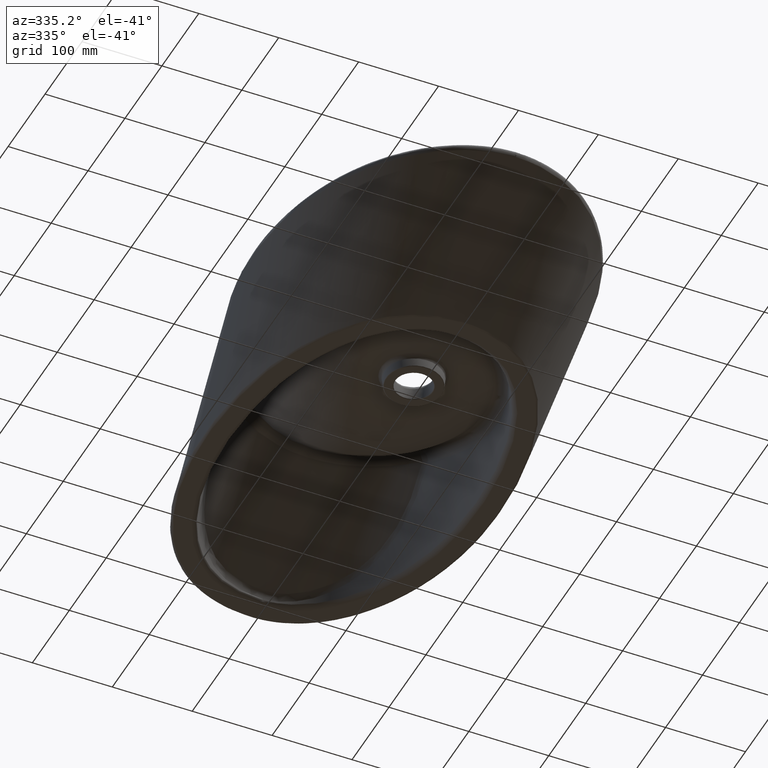
[diagram: clean part render]
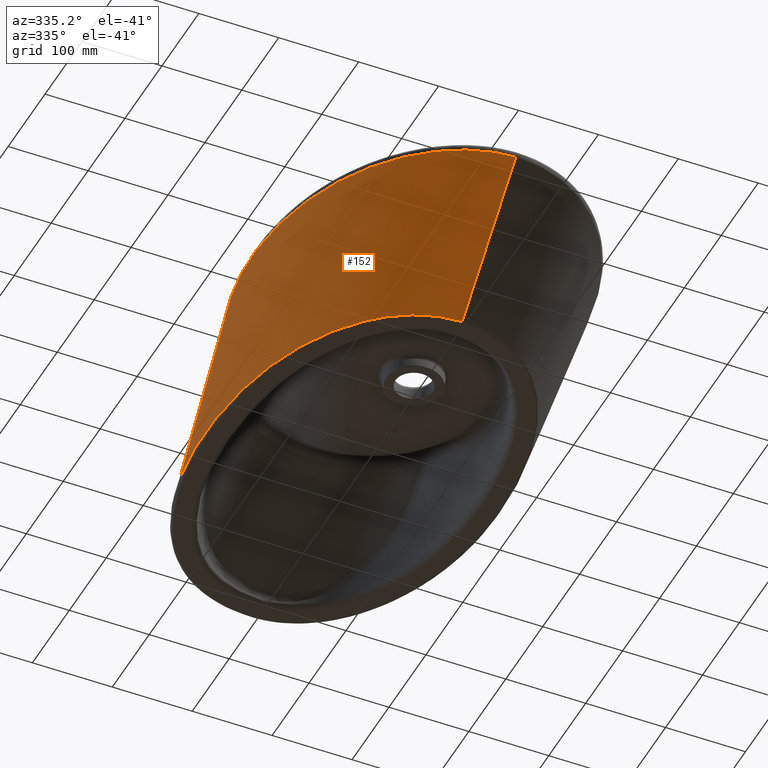
[diagram: same view with one face highlighted and labeled with its STEP entity id]
A machine part, auxiliary view. The second image highlights one B-rep face of the part: STEP entity #152.
In plain terms, the highlighted face is a freeform B-spline surface patch.
Its self-contained STEP definition (entity closure, byte-faithful):
#113=B_SPLINE_SURFACE_WITH_KNOTS('',3,3,((#1786,#1787,#1788,#1789,#1790,
#1791,#1792,#1793,#1794,#1795,#1796,#1797,#1798,#1799,#1800,#1801,#1802,
#1803,#1804,#1805,#1806,#1807,#1808,#1809),(#1810,#1811,#1812,#1813,#1814,
#1815,#1816,#1817,#1818,#1819,#1820,#1821,#1822,#1823,#1824,#1825,#1826,
#1827,#1828,#1829,#1830,#1831,#1832,#1833),(#1834,#1835,#1836,#1837,#1838,
#1839,#1840,#1841,#1842,#1843,#1844,#1845,#1846,#1847,#1848,#1849,#1850,
#1851,#1852,#1853,#1854,#1855,#1856,#1857),(#1858,#1859,#1860,#1861,#1862,
#1863,#1864,#1865,#1866,#1867,#1868,#1869,#1870,#1871,#1872,#1873,#1874,
#1875,#1876,#1877,#1878,#1879,#1880,#1881),(#1882,#1883,#1884,#1885,#1886,
#1887,#1888,#1889,#1890,#1891,#1892,#1893,#1894,#1895,#1896,#1897,#1898,
#1899,#1900,#1901,#1902,#1903,#1904,#1905),(#1906,#1907,#1908,#1909,#1910,
#1911,#1912,#1913,#1914,#1915,#1916,#1917,#1918,#1919,#1920,#1921,#1922,
#1923,#1924,#1925,#1926,#1927,#1928,#1929),(#1930,#1931,#1932,#1933,#1934,
#1935,#1936,#1937,#1938,#1939,#1940,#1941,#1942,#1943,#1944,#1945,#1946,
#1947,#1948,#1949,#1950,#1951,#1952,#1953),(#1954,#1955,#1956,#1957,#1958,
#1959,#1960,#1961,#1962,#1963,#1964,#1965,#1966,#1967,#1968,#1969,#1970,
#1971,#1972,#1973,#1974,#1975,#1976,#1977),(#1978,#1979,#1980,#1981,#1982,
#1983,#1984,#1985,#1986,#1987,#1988,#1989,#1990,#1991,#1992,#1993,#1994,
#1995,#1996,#1997,#1998,#1999,#2000,#2001),(#2002,#2003,#2004,#2005,#2006,
#2007,#2008,#2009,#2010,#2011,#2012,#2013,#2014,#2015,#2016,#2017,#2018,
#2019,#2020,#2021,#2022,#2023,#2024,#2025),(#2026,#2027,#2028,#2029,#2030,
#2031,#2032,#2033,#2034,#2035,#2036,#2037,#2038,#2039,#2040,#2041,#2042,
#2043,#2044,#2045,#2046,#2047,#2048,#2049),(#2050,#2051,#2052,#2053,#2054,
#2055,#2056,#2057,#2058,#2059,#2060,#2061,#2062,#2063,#2064,#2065,#2066,
#2067,#2068,#2069,#2070,#2071,#2072,#2073),(#2074,#2075,#2076,#2077,#2078,
#2079,#2080,#2081,#2082,#2083,#2084,#2085,#2086,#2087,#2088,#2089,#2090,
#2091,#2092,#2093,#2094,#2095,#2096,#2097),(#2098,#2099,#2100,#2101,#2102,
#2103,#2104,#2105,#2106,#2107,#2108,#2109,#2110,#2111,#2112,#2113,#2114,
#2115,#2116,#2117,#2118,#2119,#2120,#2121),(#2122,#2123,#2124,#2125,#2126,
#2127,#2128,#2129,#2130,#2131,#2132,#2133,#2134,#2135,#2136,#2137,#2138,
#2139,#2140,#2141,#2142,#2143,#2144,#2145),(#2146,#2147,#2148,#2149,#2150,
#2151,#2152,#2153,#2154,#2155,#2156,#2157,#2158,#2159,#2160,#2161,#2162,
#2163,#2164,#2165,#2166,#2167,#2168,#2169),(#2170,#2171,#2172,#2173,#2174,
#2175,#2176,#2177,#2178,#2179,#2180,#2181,#2182,#2183,#2184,#2185,#2186,
#2187,#2188,#2189,#2190,#2191,#2192,#2193),(#2194,#2195,#2196,#2197,#2198,
#2199,#2200,#2201,#2202,#2203,#2204,#2205,#2206,#2207,#2208,#2209,#2210,
#2211,#2212,#2213,#2214,#2215,#2216,#2217),(#2218,#2219,#2220,#2221,#2222,
#2223,#2224,#2225,#2226,#2227,#2228,#2229,#2230,#2231,#2232,#2233,#2234,
#2235,#2236,#2237,#2238,#2239,#2240,#2241),(#2242,#2243,#2244,#2245,#2246,
#2247,#2248,#2249,#2250,#2251,#2252,#2253,#2254,#2255,#2256,#2257,#2258,
#2259,#2260,#2261,#2262,#2263,#2264,#2265),(#2266,#2267,#2268,#2269,#2270,
#2271,#2272,#2273,#2274,#2275,#2276,#2277,#2278,#2279,#2280,#2281,#2282,
#2283,#2284,#2285,#2286,#2287,#2288,#2289),(#2290,#2291,#2292,#2293,#2294,
#2295,#2296,#2297,#2298,#2299,#2300,#2301,#2302,#2303,#2304,#2305,#2306,
#2307,#2308,#2309,#2310,#2311,#2312,#2313),(#2314,#2315,#2316,#2317,#2318,
#2319,#2320,#2321,#2322,#2323,#2324,#2325,#2326,#2327,#2328,#2329,#2330,
#2331,#2332,#2333,#2334,#2335,#2336,#2337),(#2338,#2339,#2340,#2341,#2342,
#2343,#2344,#2345,#2346,#2347,#2348,#2349,#2350,#2351,#2352,#2353,#2354,
#2355,#2356,#2357,#2358,#2359,#2360,#2361),(#2362,#2363,#2364,#2365,#2366,
#2367,#2368,#2369,#2370,#2371,#2372,#2373,#2374,#2375,#2376,#2377,#2378,
#2379,#2380,#2381,#2382,#2383,#2384,#2385),(#2386,#2387,#2388,#2389,#2390,
#2391,#2392,#2393,#2394,#2395,#2396,#2397,#2398,#2399,#2400,#2401,#2402,
#2403,#2404,#2405,#2406,#2407,#2408,#2409),(#2410,#2411,#2412,#2413,#2414,
#2415,#2416,#2417,#2418,#2419,#2420,#2421,#2422,#2423,#2424,#2425,#2426,
#2427,#2428,#2429,#2430,#2431,#2432,#2433),(#2434,#2435,#2436,#2437,#2438,
#2439,#2440,#2441,#2442,#2443,#2444,#2445,#2446,#2447,#2448,#2449,#2450,
#2451,#2452,#2453,#2454,#2455,#2456,#2457),(#2458,#2459,#2460,#2461,#2462,
#2463,#2464,#2465,#2466,#2467,#2468,#2469,#2470,#2471,#2472,#2473,#2474,
#2475,#2476,#2477,#2478,#2479,#2480,#2481),(#2482,#2483,#2484,#2485,#2486,
#2487,#2488,#2489,#2490,#2491,#2492,#2493,#2494,#2495,#2496,#2497,#2498,
#2499,#2500,#2501,#2502,#2503,#2504,#2505),(#2506,#2507,#2508,#2509,#2510,
#2511,#2512,#2513,#2514,#2515,#2516,#2517,#2518,#2519,#2520,#2521,#2522,
#2523,#2524,#2525,#2526,#2527,#2528,#2529),(#2530,#2531,#2532,#2533,#2534,
#2535,#2536,#2537,#2538,#2539,#2540,#2541,#2542,#2543,#2544,#2545,#2546,
#2547,#2548,#2549,#2550,#2551,#2552,#2553),(#2554,#2555,#2556,#2557,#2558,
#2559,#2560,#2561,#2562,#2563,#2564,#2565,#2566,#2567,#2568,#2569,#2570,
#2571,#2572,#2573,#2574,#2575,#2576,#2577),(#2578,#2579,#2580,#2581,#2582,
#2583,#2584,#2585,#2586,#2587,#2588,#2589,#2590,#2591,#2592,#2593,#2594,
#2595,#2596,#2597,#2598,#2599,#2600,#2601),(#2602,#2603,#2604,#2605,#2606,
#2607,#2608,#2609,#2610,#2611,#2612,#2613,#2614,#2615,#2616,#2617,#2618,
#2619,#2620,#2621,#2622,#2623,#2624,#2625),(#2626,#2627,#2628,#2629,#2630,
#2631,#2632,#2633,#2634,#2635,#2636,#2637,#2638,#2639,#2640,#2641,#2642,
#2643,#2644,#2645,#2646,#2647,#2648,#2649),(#2650,#2651,#2652,#2653,#2654,
#2655,#2656,#2657,#2658,#2659,#2660,#2661,#2662,#2663,#2664,#2665,#2666,
#2667,#2668,#2669,#2670,#2671,#2672,#2673),(#2674,#2675,#2676,#2677,#2678,
#2679,#2680,#2681,#2682,#2683,#2684,#2685,#2686,#2687,#2688,#2689,#2690,
#2691,#2692,#2693,#2694,#2695,#2696,#2697),(#2698,#2699,#2700,#2701,#2702,
#2703,#2704,#2705,#2706,#2707,#2708,#2709,#2710,#2711,#2712,#2713,#2714,
#2715,#2716,#2717,#2718,#2719,#2720,#2721)),.UNSPECIFIED.,.F.,.F.,.F.,(4,
1,1,1,1,1,1,1,1,1,1,1,1,1,1,1,1,1,1,1,1,1,1,1,1,1,1,1,1,1,1,1,1,2,1,4),
(4,1,1,1,1,1,1,1,1,1,1,1,1,1,1,1,1,1,3,4),(0.,0.0297564168713615,0.059512833742723,
0.0892692506140845,0.0967083548319248,0.104147459049765,0.111586563267606,
0.115306115376526,0.119025667485446,0.178538501228169,0.20829491809953,
0.238051334970892,0.252929543406573,0.267807751842253,0.297564168713615,
0.327320585584976,0.334759689802817,0.342198794020657,0.357077002456338,
0.416589836199061,0.476102669941784,0.535615503684507,0.565371920555868,
0.572811024773709,0.580250128991549,0.59512833742723,0.654641171169953,
0.714154004912676,0.773666838655399,0.788545047091079,0.80342325552676,
0.833179672398122,0.892692506140845,0.952205339883568,0.970757501777313,
1.),(0.,0.057244851544502,0.0575383042965535,0.0576902351224614,0.0578608282067849,
0.0587537509038165,0.0599691975110794,0.0621726648427654,0.0671004781410287,
0.0672618771546571,0.0721236635837088,0.0769561047375554,0.0769854500127606,
0.0786060454891112,0.0788761447351696,0.0790111943581988,0.0790787191697134,
0.079146243981228,0.980311037039011,1.),.UNSPECIFIED.);
#129=FACE_OUTER_BOUND('',#224,.T.);
#152=ADVANCED_FACE('',(#129),#113,.F.);
#224=EDGE_LOOP('',(#276,#277,#278,#279));
#276=ORIENTED_EDGE('',*,*,#432,.F.);
#277=ORIENTED_EDGE('',*,*,#433,.F.);
#278=ORIENTED_EDGE('',*,*,#434,.F.);
#279=ORIENTED_EDGE('',*,*,#435,.F.);
#392=VERTEX_POINT('',#1642);
#393=VERTEX_POINT('',#1643);
#394=VERTEX_POINT('',#1730);
#395=VERTEX_POINT('',#1735);
#432=EDGE_CURVE('',#392,#393,#492,.T.);
#433=EDGE_CURVE('',#394,#392,#493,.T.);
#434=EDGE_CURVE('',#395,#394,#494,.T.);
#435=EDGE_CURVE('',#393,#395,#495,.T.);
#492=B_SPLINE_CURVE_WITH_KNOTS('',3,(#1635,#1636,#1637,#1638,#1639,#1640,
#1641),.UNSPECIFIED.,.F.,.F.,(4,3,4),(0.,0.982623252910611,1.),
 .UNSPECIFIED.);
#493=B_SPLINE_CURVE_WITH_KNOTS('',3,(#1644,#1645,#1646,#1647,#1648,#1649,
#1650,#1651,#1652,#1653,#1654,#1655,#1656,#1657,#1658,#1659,#1660,#1661,
#1662,#1663,#1664,#1665,#1666,#1667,#1668,#1669,#1670,#1671,#1672,#1673,
#1674,#1675,#1676,#1677,#1678,#1679,#1680,#1681,#1682,#1683,#1684,#1685,
#1686,#1687,#1688,#1689,#1690,#1691,#1692,#1693,#1694,#1695,#1696,#1697,
#1698,#1699,#1700,#1701,#1702,#1703,#1704,#1705,#1706,#1707,#1708,#1709,
#1710,#1711,#1712,#1713,#1714,#1715,#1716,#1717,#1718,#1719,#1720,#1721,
#1722,#1723,#1724,#1725,#1726,#1727,#1728,#1729),.UNSPECIFIED.,.F.,.F.,
(4,2,2,2,2,2,2,2,2,2,2,2,2,2,1,1,2,2,2,2,2,2,2,2,2,2,2,2,1,1,1,2,2,2,2,
2,2,2,2,2,2,2,1,1,1,2,4),(0.,0.0624999999999996,0.0937499999999993,0.109374999999999,
0.117187499999999,0.121093749999999,0.123046874999999,0.124023437499999,
0.124999999999999,0.1875,0.21875,0.234375,0.2421875,0.24609375,0.248046875,
0.2490234375,0.24951171875,0.25,0.28125,0.296875,0.3046875,0.3125,0.34375,
0.375,0.437500000000001,0.468750000000001,0.484375000000001,0.492187500000001,
0.496093750000001,0.498046875000001,0.499023437500001,0.499511718750001,
0.500000000000001,0.562500000000001,0.625000000000001,0.687500000000001,
0.75,0.8125,0.875,0.9375,0.96875,0.984375,0.9921875,0.99609375,0.998046875,
0.9990234375,1.),.UNSPECIFIED.);
#494=B_SPLINE_CURVE_WITH_KNOTS('',3,(#1731,#1732,#1733,#1734),
 .UNSPECIFIED.,.F.,.F.,(4,4),(0.,1.),.UNSPECIFIED.);
#495=B_SPLINE_CURVE_WITH_KNOTS('',3,(#1736,#1737,#1738,#1739,#1740,#1741,
#1742,#1743,#1744,#1745,#1746,#1747,#1748,#1749,#1750,#1751,#1752,#1753,
#1754,#1755,#1756,#1757,#1758,#1759,#1760,#1761,#1762,#1763,#1764,#1765,
#1766,#1767,#1768,#1769,#1770,#1771,#1772,#1773,#1774,#1775,#1776,#1777,
#1778,#1779,#1780,#1781,#1782,#1783,#1784,#1785),.UNSPECIFIED.,.F.,.F.,
(4,2,2,2,2,2,2,2,2,2,2,2,2,2,2,2,2,2,2,2,2,2,2,2,4),(0.,0.03125,0.0625,
0.09375,0.125,0.1875,0.21875,0.25,0.3125,0.375,0.4375,0.5,0.5625,0.625,
0.6875,0.75,0.78125,0.8125,0.84375,0.875,0.90625,0.9375,0.96875,0.984375,
1.),.UNSPECIFIED.);
#1635=CARTESIAN_POINT('',(0.204482560586077,-275.767148931812,-12.3387579224737));
#1636=CARTESIAN_POINT('',(0.686710176050133,-227.130988936303,-54.8925052816491));
#1637=CARTESIAN_POINT('',(1.16893779151417,-178.49482894102,-97.4462526408245));
#1638=CARTESIAN_POINT('',(1.65116540697822,-129.858668945611,-140.));
#1639=CARTESIAN_POINT('',(1.65969313852601,-128.998585236889,-140.752522091632));
#1640=CARTESIAN_POINT('',(1.6682208700738,-128.138501528168,-141.505044183263));
#1641=CARTESIAN_POINT('',(1.67674860162159,-127.278417819446,-142.257566274895));
#1642=CARTESIAN_POINT('',(0.205253176169336,-275.767157299169,-12.3387514900656));
#1643=CARTESIAN_POINT('',(1.67674860162163,-127.278417819443,-142.257566274898));
#1644=CARTESIAN_POINT('',(0.0313768055084397,289.070918268956,-4.72945629695537));
#1645=CARTESIAN_POINT('',(-19.1010856446667,289.082509225623,-4.72936313931334));
#1646=CARTESIAN_POINT('',(-36.0867438337098,285.340172197213,-4.7864068241074));
#1647=CARTESIAN_POINT('',(-57.6098482376995,277.636073585707,-4.9148950387008));
#1648=CARTESIAN_POINT('',(-64.1429149382819,274.718407951289,-4.96358842578304));
#1649=CARTESIAN_POINT('',(-73.0392262302666,270.151547372254,-5.04336923202388));
#1650=CARTESIAN_POINT('',(-75.8482270182607,268.596950222546,-5.07004130207721));
#1651=CARTESIAN_POINT('',(-79.8451274002839,266.254997205996,-5.11087371803109));
#1652=CARTESIAN_POINT('',(-81.1452322826435,265.471171446551,-5.12594251013199));
#1653=CARTESIAN_POINT('',(-83.0436540309535,264.291366151193,-5.15000927290445));
#1654=CARTESIAN_POINT('',(-83.6675779903599,263.89752691565,-5.15818021311921));
#1655=CARTESIAN_POINT('',(-84.5892203655271,263.306697198954,-5.17026099812606));
#1656=CARTESIAN_POINT('',(-84.8940338360693,263.10975416382,-5.17424740411049));
#1657=CARTESIAN_POINT('',(-85.3477314492963,262.814421416518,-5.18017652255192));
#1658=CARTESIAN_POINT('',(-85.4983860471745,262.715988123584,-5.18214786657449));
#1659=CARTESIAN_POINT('',(-85.7985509201051,262.519153867868,-5.18608223190279));
#1660=CARTESIAN_POINT('',(-85.9055336164927,262.448785162579,-5.1874272609902));
#1661=CARTESIAN_POINT('',(-98.5954976375627,254.07098045771,-5.35852744278737));
#1662=CARTESIAN_POINT('',(-110.973551494807,243.340571853682,-5.61065660311411));
#1663=CARTESIAN_POINT('',(-128.020882179881,223.528293881751,-6.05730222288662));
#1664=CARTESIAN_POINT('',(-133.455363398722,216.329514713155,-6.21623046520778));
#1665=CARTESIAN_POINT('',(-141.193798597233,204.711054141868,-6.45712243145162));
#1666=CARTESIAN_POINT('',(-143.705137171619,200.701545518238,-6.53783332262629));
#1667=CARTESIAN_POINT('',(-147.368794488792,194.494991843293,-6.65787083941309));
#1668=CARTESIAN_POINT('',(-148.572812226321,192.394128795427,-6.69771301671796));
#1669=CARTESIAN_POINT('',(-150.353102354671,189.196751612065,-6.75703112572353));
#1670=CARTESIAN_POINT('',(-150.942233497241,188.123288843483,-6.77671891626471));
#1671=CARTESIAN_POINT('',(-151.819523319863,186.501846909829,-6.80611413719197));
#1672=CARTESIAN_POINT('',(-152.256569132227,185.688312041418,-6.8207805272034));
#1673=CARTESIAN_POINT('',(-152.763671871545,184.734313588137,-6.83784358422042));
#1674=CARTESIAN_POINT('',(-152.980405158777,184.324420133175,-6.84514680648803));
#1675=CARTESIAN_POINT('',(-153.124761256789,184.050928657544,-6.85001357763465));
#1676=CARTESIAN_POINT('',(-153.176949633533,183.95188110349,-6.85168835500685));
#1677=CARTESIAN_POINT('',(-159.743284696118,171.474729704799,-7.08133816044385));
#1678=CARTESIAN_POINT('',(-165.078252163581,159.459749008081,-7.28076199332166));
#1679=CARTESIAN_POINT('',(-172.010725414787,142.211172543575,-7.52050288898961));
#1680=CARTESIAN_POINT('',(-174.139289557946,136.599457191074,-7.57950019240185));
#1681=CARTESIAN_POINT('',(-177.141155164542,128.401094225984,-7.67162982343251));
#1682=CARTESIAN_POINT('',(-178.105984715329,125.7082728125,-7.6970486322902));
#1683=CARTESIAN_POINT('',(-179.988167050423,120.369221583506,-7.78399308596728));
#1684=CARTESIAN_POINT('',(-180.908823631045,117.703956243026,-7.86392827591304));
#1685=CARTESIAN_POINT('',(-185.20753589125,104.619367109473,-8.20093390199576));
#1686=CARTESIAN_POINT('',(-187.848546108316,94.7820775969198,-8.46052075597132));
#1687=CARTESIAN_POINT('',(-192.072350999396,76.2885035646348,-8.91259848604673));
#1688=CARTESIAN_POINT('',(-193.641419288782,67.6755612309803,-9.11290148403082));
#1689=CARTESIAN_POINT('',(-197.231706001501,43.8938640645917,-9.63589277102342));
#1690=CARTESIAN_POINT('',(-198.166222522594,30.8055493069112,-9.86938767672319));
#1691=CARTESIAN_POINT('',(-198.834910094635,15.5375322671212,-10.0824648058005));
#1692=CARTESIAN_POINT('',(-198.926860179144,11.1712781819224,-10.1308394554612));
#1693=CARTESIAN_POINT('',(-198.982307257316,5.71099639444709,-10.1737078296094));
#1694=CARTESIAN_POINT('',(-198.986616303428,4.07234763765901,-10.1830265982883));
#1695=CARTESIAN_POINT('',(-198.982453341078,1.88674876701434,-10.1898494248533));
#1696=CARTESIAN_POINT('',(-198.979267810415,1.20359876439518,-10.1909442036728));
#1697=CARTESIAN_POINT('',(-198.972883478234,0.246936018150257,-10.1908858201191));
#1698=CARTESIAN_POINT('',(-198.969287361579,-0.214379772298822,-10.1904313807384));
#1699=CARTESIAN_POINT('',(-198.96459804606,-0.722806184435689,-10.1891709319165));
#1700=CARTESIAN_POINT('',(-198.962154685684,-0.969575001115245,-10.1883597836592));
#1701=CARTESIAN_POINT('',(-198.961088990074,-1.07373775864093,-10.1879735530273));
#1702=CARTESIAN_POINT('',(-198.960374690711,-1.14282509040507,-10.1877075085757));
#1703=CARTESIAN_POINT('',(-198.9609497226,-1.11478026235032,-10.1862042531088));
#1704=CARTESIAN_POINT('',(-198.610302568689,-26.2440975028744,-10.6216315217115));
#1705=CARTESIAN_POINT('',(-195.857818658606,-49.9473213666233,-10.9419090937003));
#1706=CARTESIAN_POINT('',(-186.86105326938,-94.1966326629051,-11.420114907338));
#1707=CARTESIAN_POINT('',(-180.60734268758,-114.773824849335,-11.60821104682));
#1708=CARTESIAN_POINT('',(-165.425899573515,-152.284946706973,-11.9535057622642));
#1709=CARTESIAN_POINT('',(-156.4986520583,-169.221929566569,-12.1142976970996));
#1710=CARTESIAN_POINT('',(-136.955841731686,-199.126394281696,-12.3932690483818));
#1711=CARTESIAN_POINT('',(-126.333820107771,-212.068004063921,-12.5169923838258));
#1712=CARTESIAN_POINT('',(-104.465703793536,-233.932517969334,-12.6841081169847));
#1713=CARTESIAN_POINT('',(-93.2314792445727,-242.819021777967,-12.7356882761319));
#1714=CARTESIAN_POINT('',(-71.2694741439324,-256.968105961209,-12.7376421072664));
#1715=CARTESIAN_POINT('',(-60.5326965094077,-262.23671500473,-12.6938742021185));
#1716=CARTESIAN_POINT('',(-40.3891181421234,-269.906433744426,-12.575507023956));
#1717=CARTESIAN_POINT('',(-30.9721725717278,-272.321598666933,-12.5019239110052));
#1718=CARTESIAN_POINT('',(-18.236451267426,-274.504557150122,-12.4175125239442));
#1719=CARTESIAN_POINT('',(-14.2148509277338,-274.995756310642,-12.3927967170568));
#1720=CARTESIAN_POINT('',(-8.55231578984917,-275.464734988289,-12.365124722326));
#1721=CARTESIAN_POINT('',(-6.72639062977513,-275.576424402639,-12.3574267405464));
#1722=CARTESIAN_POINT('',(-4.08289134849369,-275.687588985544,-12.3484708043698));
#1723=CARTESIAN_POINT('',(-2.78497305789928,-275.729073306355,-12.344639237899));
#1724=CARTESIAN_POINT('',(-1.31294090013409,-275.755040875898,-12.3413565294245));
#1725=CARTESIAN_POINT('',(-0.587528066224702,-275.762690144914,-12.3400186978425));
#1726=CARTESIAN_POINT('',(-0.278914305125702,-275.764854353459,-12.3395110986185));
#1727=CARTESIAN_POINT('',(-0.0736784628331444,-275.766052801373,-12.3391873908517));
#1728=CARTESIAN_POINT('',(-0.018653130005352,-275.766460140727,-12.3391032449409));
#1729=CARTESIAN_POINT('',(0.20448266379301,-275.767124640791,-12.3387791755498));
#1730=CARTESIAN_POINT('',(0.0313768055137461,289.070918242235,-4.72945627297798));
#1731=CARTESIAN_POINT('',(0.000518047038134228,437.507353006099,-137.765959281951));
#1732=CARTESIAN_POINT('',(0.0108042998633963,388.028541418077,-93.4204582788902));
#1733=CARTESIAN_POINT('',(0.0210905526902151,338.549729830076,-49.0749572758282));
#1734=CARTESIAN_POINT('',(0.0313768055138458,289.070918242034,-4.7294562727683));
#1735=CARTESIAN_POINT('',(0.00051804703812982,437.5073530061,-137.765959281952));
#1736=CARTESIAN_POINT('',(1.67674860162169,-127.278417819437,-142.257566274903));
#1737=CARTESIAN_POINT('',(-6.21894477736492,-127.387375543256,-142.258509190588));
#1738=CARTESIAN_POINT('',(-13.9744000264923,-126.6901953672,-142.253083171759));
#1739=CARTESIAN_POINT('',(-29.231007481022,-123.834007165101,-142.231321422184));
#1740=CARTESIAN_POINT('',(-36.7760673317722,-121.651771320985,-142.214438961413));
#1741=CARTESIAN_POINT('',(-51.4157003136654,-115.918232913187,-142.171714860233));
#1742=CARTESIAN_POINT('',(-58.3855120120902,-112.436256510563,-142.146514609434));
#1743=CARTESIAN_POINT('',(-71.7307768072041,-104.427594303477,-142.089438968056));
#1744=CARTESIAN_POINT('',(-78.1317798592495,-99.870305894886,-142.05726079008));
#1745=CARTESIAN_POINT('',(-96.330905220391,-84.9450138465171,-141.956339023185));
#1746=CARTESIAN_POINT('',(-106.892677287674,-73.5878322001619,-141.882075430575));
#1747=CARTESIAN_POINT('',(-121.028801751008,-55.0236516106135,-141.765588705146));
#1748=CARTESIAN_POINT('',(-125.468364778185,-48.5479606477462,-141.725446584424));
#1749=CARTESIAN_POINT('',(-133.722507528708,-35.2705815951339,-141.64243532956));
#1750=CARTESIAN_POINT('',(-137.531277478898,-28.4809467842336,-141.600306636489));
#1751=CARTESIAN_POINT('',(-148.133043896479,-7.72101872012188,-141.473545610151));
#1752=CARTESIAN_POINT('',(-154.110053255391,6.63621666359005,-141.384683824478));
#1753=CARTESIAN_POINT('',(-164.177511430015,36.2453229173849,-141.201401677146));
#1754=CARTESIAN_POINT('',(-168.206144979986,51.275579889029,-141.108747573866));
#1755=CARTESIAN_POINT('',(-174.465521196352,81.5464928506029,-140.908670865322));
#1756=CARTESIAN_POINT('',(-176.670932772331,96.8248526365827,-140.840830201044));
#1757=CARTESIAN_POINT('',(-180.08562716237,127.535276547181,-140.687465519289));
#1758=CARTESIAN_POINT('',(-181.189898279342,142.983523650101,-140.596591520537));
#1759=CARTESIAN_POINT('',(-182.059470830232,174.086599936571,-140.387131822246));
#1760=CARTESIAN_POINT('',(-181.820001535622,189.643039850289,-140.268195508033));
#1761=CARTESIAN_POINT('',(-179.847580277659,220.482396801062,-140.002346849018));
#1762=CARTESIAN_POINT('',(-178.11803782209,235.806486334219,-139.855118452718));
#1763=CARTESIAN_POINT('',(-172.895697217503,266.228012019872,-139.536421071781));
#1764=CARTESIAN_POINT('',(-169.406548112754,281.333770166721,-139.364490778327));
#1765=CARTESIAN_POINT('',(-160.154256916896,311.221476134694,-139.008971749914));
#1766=CARTESIAN_POINT('',(-154.500175511168,325.674431710685,-138.840635349236));
#1767=CARTESIAN_POINT('',(-144.084113263804,346.429850212678,-138.608377298092));
#1768=CARTESIAN_POINT('',(-140.287032015664,353.193091711753,-138.534239933109));
#1769=CARTESIAN_POINT('',(-131.928167584893,366.35438666256,-138.393003411377));
#1770=CARTESIAN_POINT('',(-127.342525564448,372.774965789872,-138.325695475208));
#1771=CARTESIAN_POINT('',(-117.496263489802,384.882927019763,-138.202034201427));
#1772=CARTESIAN_POINT('',(-112.218138578564,390.604644942466,-138.145308661878));
#1773=CARTESIAN_POINT('',(-100.860362944033,401.297873126695,-138.042815703647));
#1774=CARTESIAN_POINT('',(-94.7281180026513,406.300060468821,-137.996807416805));
#1775=CARTESIAN_POINT('',(-81.9176538771225,415.191429169154,-137.918720373709));
#1776=CARTESIAN_POINT('',(-75.2235814917858,419.106595780188,-137.886082960195));
#1777=CARTESIAN_POINT('',(-61.2467868350322,425.855752736364,-137.834675733156));
#1778=CARTESIAN_POINT('',(-53.9265987999395,428.698802461098,-137.815238077778));
#1779=CARTESIAN_POINT('',(-38.8493577936868,433.204377774579,-137.787115914406));
#1780=CARTESIAN_POINT('',(-31.1468635386496,434.851472137964,-137.778359916995));
#1781=CARTESIAN_POINT('',(-19.5400652080729,436.461216577344,-137.770459430443));
#1782=CARTESIAN_POINT('',(-15.6542408070948,436.856681372954,-137.768685058628));
#1783=CARTESIAN_POINT('',(-7.85053320511692,437.379782381014,-137.766440724875));
#1784=CARTESIAN_POINT('',(-3.87958056979837,437.507405319619,-137.765970682982));
#1785=CARTESIAN_POINT('',(0.000518047037549408,437.507353008874,-137.765959284439));
#1786=CARTESIAN_POINT('',(0.0346471883478428,273.339761442961,9.36962992641171));
#1787=CARTESIAN_POINT('',(0.0339727826664296,276.583779669186,6.46217097806896));
#1788=CARTESIAN_POINT('',(0.0332949197972018,279.844427619314,3.53980760064926));
#1789=CARTESIAN_POINT('',(0.0326152670200714,283.113685363252,0.609727675323531));
#1790=CARTESIAN_POINT('',(0.0326080101550529,283.148592249469,0.578442296631745));
#1791=CARTESIAN_POINT('',(0.0325936908918305,283.217470599933,0.516709913383757));
#1792=CARTESIAN_POINT('',(0.0325668422732884,283.346617507053,0.400961694793775));
#1793=CARTESIAN_POINT('',(0.0325160442181592,283.590965710573,0.18196404395128));
#1794=CARTESIAN_POINT('',(0.0324177108289004,284.063967815677,-0.241965202792299));
#1795=CARTESIAN_POINT('',(0.0323317952495661,284.477237918462,-0.612359502280235));
#1796=CARTESIAN_POINT('',(0.0322145618232306,285.041152758204,-1.11776950079882));
#1797=CARTESIAN_POINT('',(0.0320984519829347,285.599662937677,-1.61833555986737));
#1798=CARTESIAN_POINT('',(0.0319838978771557,286.150689741391,-2.11219462585129));
#1799=CARTESIAN_POINT('',(0.031907528473303,286.518040943867,-2.4414340031739));
#1800=CARTESIAN_POINT('',(0.0318849083450642,286.626848016982,-2.53895259780067));
#1801=CARTESIAN_POINT('',(0.0318610429063604,286.741645267754,-2.64183990321402));
#1802=CARTESIAN_POINT('',(0.0318554743039962,286.768431292935,-2.66584694114378));
#1803=CARTESIAN_POINT('',(0.0318522922455024,286.783737593038,-2.67956524853223));
#1804=CARTESIAN_POINT('',(0.0212340144758639,337.859651635549,-48.4564730758393));
#1805=CARTESIAN_POINT('',(0.0106165322215667,388.931739106038,-94.2299513263578));
#1806=CARTESIAN_POINT('',(-1.54518465911302E-007,440.,-140.));
#1807=CARTESIAN_POINT('',(-0.000232111596242604,441.115757189994,-141.));
#1808=CARTESIAN_POINT('',(-0.000464068674019297,442.231514379987,-142.));
#1809=CARTESIAN_POINT('',(-0.00069602575179599,443.347271569981,-143.000000000001));
#1810=CARTESIAN_POINT('',(-7.77514626016725,273.342893454672,9.36914613575392));
#1811=CARTESIAN_POINT('',(-7.77130722195728,276.586851362014,6.46169729630525));
#1812=CARTESIAN_POINT('',(-7.76744853577983,279.847523396728,3.53943865466383));
#1813=CARTESIAN_POINT('',(-7.76357959903265,283.116632351479,0.609270757464793));
#1814=CARTESIAN_POINT('',(-7.76353828895946,283.151538273871,0.577985136643083));
#1815=CARTESIAN_POINT('',(-7.76345677533698,283.220416088175,0.516253799368628));
#1816=CARTESIAN_POINT('',(-7.76330393330177,283.349573180096,0.400520027420182));
#1817=CARTESIAN_POINT('',(-7.7630147434624,283.593960020934,0.181571319290491));
#1818=CARTESIAN_POINT('',(-7.7624549110653,284.067070846147,-0.242225331155611));
#1819=CARTESIAN_POINT('',(-7.7619657554024,284.480506237067,-0.612425344038471));
#1820=CARTESIAN_POINT('',(-7.76129832087676,285.044644073679,-1.11757307096134));
#1821=CARTESIAN_POINT('',(-7.76063730894003,285.603371857718,-1.61788300394403));
#1822=CARTESIAN_POINT('',(-7.75998521044294,286.154560327043,-2.11154853675921));
#1823=CARTESIAN_POINT('',(-7.7595504810609,286.521986348371,-2.44069566534159));
#1824=CARTESIAN_POINT('',(-7.7594217172678,286.630812012871,-2.53819091915553));
#1825=CARTESIAN_POINT('',(-7.75928586445724,286.74561500979,-2.64106907293407));
#1826=CARTESIAN_POINT('',(-7.75925416546436,286.772401939875,-2.6650744617938));
#1827=CARTESIAN_POINT('',(-7.75923605174819,286.787708069384,-2.67879259414823));
#1828=CARTESIAN_POINT('',(-7.69879200534703,337.86229851519,-48.4559579927736));
#1829=CARTESIAN_POINT('',(-7.63835248758659,388.933062495556,-94.2296937953291));
#1830=CARTESIAN_POINT('',(-7.5779174981501,439.999999994848,-140.000000001703));
#1831=CARTESIAN_POINT('',(-7.57659709340534,441.115728270853,-141.000005628369));
#1832=CARTESIAN_POINT('',(-7.57527668866059,442.231456546858,-142.000011255034));
#1833=CARTESIAN_POINT('',(-7.57395628391583,443.347184822863,-143.000016881699));
#1834=CARTESIAN_POINT('',(-23.5624010677585,272.032476314049,9.37197065260381));
#1835=CARTESIAN_POINT('',(-23.5370167302229,275.283493155044,6.46446405254961));
#1836=CARTESIAN_POINT('',(-23.5115023685021,278.551433664608,3.54234123370925));
#1837=CARTESIAN_POINT('',(-23.4859204430282,281.827477676026,0.611915354866329));
#1838=CARTESIAN_POINT('',(-23.4856472961647,281.862458815406,0.580628284002048));
#1839=CARTESIAN_POINT('',(-23.4851083199887,281.931488050392,0.51889744740487));
#1840=CARTESIAN_POINT('',(-23.4840977247229,282.060951898226,0.403190151148842));
#1841=CARTESIAN_POINT('',(-23.4821856201006,282.305958291026,0.184335311181256));
#1842=CARTESIAN_POINT('',(-23.4784841197285,282.780343464787,-0.239195596685444));
#1843=CARTESIAN_POINT('',(-23.4752499737771,283.19503856171,-0.608999811967764));
#1844=CARTESIAN_POINT('',(-23.4708370327968,283.760890805796,-1.1136124619259));
#1845=CARTESIAN_POINT('',(-23.4664664941203,284.321310295217,-1.61339944728405));
#1846=CARTESIAN_POINT('',(-23.4621547442166,284.874057392062,-2.10667252943138));
#1847=CARTESIAN_POINT('',(-23.4592802549517,285.242453386484,-2.43563533476191));
#1848=CARTESIAN_POINT('',(-23.4584288506138,285.351558920475,-2.53308430364515));
#1849=CARTESIAN_POINT('',(-23.4575305719102,285.466628144327,-2.63594612014697));
#1850=CARTESIAN_POINT('',(-23.4573209734593,285.493476210611,-2.65994879875257));
#1851=CARTESIAN_POINT('',(-23.4572012028867,285.50881595911,-2.6736668514179));
#1852=CARTESIAN_POINT('',(-23.0575360825934,336.693829015438,-48.4525409601437));
#1853=CARTESIAN_POINT('',(-22.6579009058042,387.875007312549,-94.2279853447215));
#1854=CARTESIAN_POINT('',(-22.2582956712483,439.052350866287,-140.000000005134));
#1855=CARTESIAN_POINT('',(-22.2495649565968,440.170491332308,-141.000042958699));
#1856=CARTESIAN_POINT('',(-22.2408342419452,441.288631798329,-142.000085912265));
#1857=CARTESIAN_POINT('',(-22.2321035272937,442.40677226435,-143.00012886583));
#1858=CARTESIAN_POINT('',(-47.1550640927743,266.03740290189,9.38438767768908));
#1859=CARTESIAN_POINT('',(-47.0713347996711,269.324862494943,6.47662387996766));
#1860=CARTESIAN_POINT('',(-46.987176520217,272.629701909358,3.55454455660082));
#1861=CARTESIAN_POINT('',(-46.9027956159171,275.9421981784,0.623552153275327));
#1862=CARTESIAN_POINT('',(-46.9018946534264,275.97757005401,0.59226073371069));
#1863=CARTESIAN_POINT('',(-46.9001168656711,276.04737550702,0.530527187135271));
#1864=CARTESIAN_POINT('',(-46.8967834743177,276.178330086091,0.414854434502798));
#1865=CARTESIAN_POINT('',(-46.8904765242329,276.426216542416,0.196131749310615));
#1866=CARTESIAN_POINT('',(-46.8782674339222,276.906308351248,-0.226995312006637));
#1867=CARTESIAN_POINT('',(-46.867599915055,277.326223099845,-0.596184302926473));
#1868=CARTESIAN_POINT('',(-46.853044202774,277.899192603407,-1.0999630745665));
#1869=CARTESIAN_POINT('',(-46.838628308808,278.466652442095,-1.5989338974079));
#1870=CARTESIAN_POINT('',(-46.8244062164446,279.026169008851,-2.091599997916));
#1871=CARTESIAN_POINT('',(-46.8149248487474,279.398966208037,-2.4202837010169));
#1872=CARTESIAN_POINT('',(-46.8121165308725,279.509363475937,-2.51766333546881));
#1873=CARTESIAN_POINT('',(-46.8091535980832,279.625748647165,-2.62050467928771));
#1874=CARTESIAN_POINT('',(-46.8084622466845,279.652901996658,-2.64450457618949));
#1875=CARTESIAN_POINT('',(-46.8080671886472,279.66841439233,-2.65822305113386));
#1876=CARTESIAN_POINT('',(-45.4897888446641,331.426221787196,-48.4422454807303));
#1877=CARTESIAN_POINT('',(-44.1716092647557,383.180151523505,-94.2228378005456));
#1878=CARTESIAN_POINT('',(-42.8535284496738,434.930203596029,-140.000000010449));
#1879=CARTESIAN_POINT('',(-42.8247305599341,436.060856797679,-141.000155429472));
#1880=CARTESIAN_POINT('',(-42.7959326701945,437.191509999329,-142.000310848496));
#1881=CARTESIAN_POINT('',(-42.7671347804548,438.322163200979,-143.000466267519));
#1882=CARTESIAN_POINT('',(-64.3958818072852,258.573179324121,9.40212595843708));
#1883=CARTESIAN_POINT('',(-64.2564316306599,261.908385108485,6.49399763116147));
#1884=CARTESIAN_POINT('',(-64.1162669288053,265.261422521657,3.57178456902726));
#1885=CARTESIAN_POINT('',(-63.9757315378468,268.621828337801,0.640190578793306));
#1886=CARTESIAN_POINT('',(-63.9742309959931,268.657712738104,0.608893828472662));
#1887=CARTESIAN_POINT('',(-63.971270112377,268.728533877803,0.547154701015343));
#1888=CARTESIAN_POINT('',(-63.9657183926966,268.861419910728,0.431501908439108));
#1889=CARTESIAN_POINT('',(-63.9552142514959,269.113005666602,0.212867534475749));
#1890=CARTESIAN_POINT('',(-63.9348801880988,269.600369329576,-0.209963333917967));
#1891=CARTESIAN_POINT('',(-63.917113595515,270.02682142346,-0.57868649298524));
#1892=CARTESIAN_POINT('',(-63.8928712707261,270.608708630618,-1.08183252298103));
#1893=CARTESIAN_POINT('',(-63.8688618119557,271.184994705762,-1.58018338543575));
#1894=CARTESIAN_POINT('',(-63.8451751155915,271.753080259703,-2.07239440378465));
#1895=CARTESIAN_POINT('',(-63.8293840274806,272.131501313824,-2.40087479399463));
#1896=CARTESIAN_POINT('',(-63.8247068122932,272.243554987034,-2.49820473472306));
#1897=CARTESIAN_POINT('',(-63.8197720862774,272.361650544412,-2.60103557908199));
#1898=CARTESIAN_POINT('',(-63.8186206494088,272.389201462899,-2.62503474583893));
#1899=CARTESIAN_POINT('',(-63.8179626853192,272.404939817299,-2.6387541723502));
#1900=CARTESIAN_POINT('',(-61.622386787606,324.913824903078,-48.4292667157771));
#1901=CARTESIAN_POINT('',(-59.4269753833839,377.418776067151,-94.2163486630613));
#1902=CARTESIAN_POINT('',(-57.2317284691429,429.919793293619,-140.000000014261));
#1903=CARTESIAN_POINT('',(-57.1837659482836,431.066853844086,-141.000297210309));
#1904=CARTESIAN_POINT('',(-57.1358034274243,432.213914394552,-142.000594406357));
#1905=CARTESIAN_POINT('',(-57.087840906565,433.360974945019,-143.000891602404));
#1906=CARTESIAN_POINT('',(-75.4784068433948,252.486123505768,9.42008446677344));
#1907=CARTESIAN_POINT('',(-75.3011588620308,255.860084582302,6.51159092561785));
#1908=CARTESIAN_POINT('',(-75.1230026810859,259.252215235425,3.58916751122215));
#1909=CARTESIAN_POINT('',(-74.944375386599,262.651538676592,0.657048607686445));
#1910=CARTESIAN_POINT('',(-74.9424681253706,262.687839201014,0.625746909061272));
#1911=CARTESIAN_POINT('',(-74.9387046987159,262.759484512421,0.564001496201017));
#1912=CARTESIAN_POINT('',(-74.931648193198,262.893934021687,0.448357376960402));
#1913=CARTESIAN_POINT('',(-74.918296913849,263.148507842371,0.22977312984923));
#1914=CARTESIAN_POINT('',(-74.8924513134788,263.641733900775,-0.192872222571579));
#1915=CARTESIAN_POINT('',(-74.8698690867681,264.073433280588,-0.561292012853377));
#1916=CARTESIAN_POINT('',(-74.8390558962454,264.662479201995,-1.06402551801727));
#1917=CARTESIAN_POINT('',(-74.8085387081472,265.245851596886,-1.56197205050535));
#1918=CARTESIAN_POINT('',(-74.7784317963468,265.820833796292,-2.05389104472102));
#1919=CARTESIAN_POINT('',(-74.758360576333,266.203791801805,-2.38224539912857));
#1920=CARTESIAN_POINT('',(-74.752415614591,266.317182923771,-2.47954519326066));
#1921=CARTESIAN_POINT('',(-74.7461433428665,266.436664098341,-2.58237297244684));
#1922=CARTESIAN_POINT('',(-74.7446798116942,266.464537245343,-2.60637264949657));
#1923=CARTESIAN_POINT('',(-74.7438435079482,266.480458965975,-2.62009322331418));
#1924=CARTESIAN_POINT('',(-71.953161607746,319.599112385801,-48.4168265499148));
#1925=CARTESIAN_POINT('',(-69.1626887847039,372.713786188922,-94.2101288143855));
#1926=CARTESIAN_POINT('',(-66.372425037254,425.824480376752,-140.00000001668));
#1927=CARTESIAN_POINT('',(-66.311462380925,426.984861362286,-141.000433106205));
#1928=CARTESIAN_POINT('',(-66.2504997245961,428.145242347819,-142.000866195731));
#1929=CARTESIAN_POINT('',(-66.1895370682671,429.305623333353,-143.001299285256));
#1930=CARTESIAN_POINT('',(-81.0430473574427,249.155578088175,9.43283346427788));
#1931=CARTESIAN_POINT('',(-80.8447142766142,252.551607032476,6.52408339383812));
#1932=CARTESIAN_POINT('',(-80.6453649428679,255.965988523198,3.60148078062927));
#1933=CARTESIAN_POINT('',(-80.4454884702896,259.387481869583,0.669024822732363));
#1934=CARTESIAN_POINT('',(-80.4433543248417,259.424019390523,0.637719839250208));
#1935=CARTESIAN_POINT('',(-80.4391432079174,259.496133911791,0.575969719554002));
#1936=CARTESIAN_POINT('',(-80.4312472739465,259.631472287005,0.460327033444114));
#1937=CARTESIAN_POINT('',(-80.4163077513967,259.887742814528,0.241762351656263));
#1938=CARTESIAN_POINT('',(-80.3873876082372,260.384293217267,-0.180799935475397));
#1939=CARTESIAN_POINT('',(-80.3621190431772,260.818960229857,-0.549075910897834));
#1940=CARTESIAN_POINT('',(-80.327640375818,261.412054976026,-1.05161379352483));
#1941=CARTESIAN_POINT('',(-80.2934929252387,261.999435541702,-1.54936865173035));
#1942=CARTESIAN_POINT('',(-80.259804558361,262.578324464355,-2.04115244652087));
#1943=CARTESIAN_POINT('',(-80.237345707622,262.963856246946,-2.36945135084453));
#1944=CARTESIAN_POINT('',(-80.2306935455158,263.078006496369,-2.46673834398712));
#1945=CARTESIAN_POINT('',(-80.2236751367697,263.198275737937,-2.5695671344862));
#1946=CARTESIAN_POINT('',(-80.2220375067955,263.226332213152,-2.59356767536041));
#1947=CARTESIAN_POINT('',(-80.2211017179916,263.242358320791,-2.60728915936101));
#1948=CARTESIAN_POINT('',(-77.0984456874388,316.70825752853,-48.408290827384));
#1949=CARTESIAN_POINT('',(-73.9760236063581,370.17015111805,-94.2058611135196));
#1950=CARTESIAN_POINT('',(-70.8538354716497,423.628039069886,-140.000000017686));
#1951=CARTESIAN_POINT('',(-70.7856208154457,424.796005665967,-141.000526349451));
#1952=CARTESIAN_POINT('',(-70.7174061592418,425.963972262049,-142.001052681217));
#1953=CARTESIAN_POINT('',(-70.6491915030379,427.131938858131,-143.001579012983));
#1954=CARTESIAN_POINT('',(-85.2247925624932,246.4341974839,9.4450146195098));
#1955=CARTESIAN_POINT('',(-85.0163115176951,249.845185952678,6.53602002844217));
#1956=CARTESIAN_POINT('',(-84.8067622425355,253.274662039895,3.61323737252294));
#1957=CARTESIAN_POINT('',(-84.5966588555444,256.711173323583,0.680469502673245));
#1958=CARTESIAN_POINT('',(-84.5944155140523,256.747871419884,0.649161438792573));
#1959=CARTESIAN_POINT('',(-84.5899889296754,256.820304119381,0.587406748014553));
#1960=CARTESIAN_POINT('',(-84.5816889862781,256.956246672656,0.471764059248595));
#1961=CARTESIAN_POINT('',(-84.5659850448726,257.213672762891,0.25321340649667));
#1962=CARTESIAN_POINT('',(-84.5355851031674,257.712493973294,-0.169283311393799));
#1963=CARTESIAN_POINT('',(-84.5090235630721,258.149197982334,-0.537442175128338));
#1964=CARTESIAN_POINT('',(-84.472780678834,258.745071848437,-1.03982068955694));
#1965=CARTESIAN_POINT('',(-84.4368859930954,259.335203393532,-1.53741939557823));
#1966=CARTESIAN_POINT('',(-84.4014739468204,259.916766362973,-2.02909440559255));
#1967=CARTESIAN_POINT('',(-84.3778659817967,260.30405502639,-2.3573499664093));
#1968=CARTESIAN_POINT('',(-84.3708734598997,260.418722959521,-2.45462716409034));
#1969=CARTESIAN_POINT('',(-84.3634959508307,260.539527580919,-2.55745783025624));
#1970=CARTESIAN_POINT('',(-84.3617745306383,260.567708506024,-2.58145934399596));
#1971=CARTESIAN_POINT('',(-84.3607908616847,260.583805426348,-2.5951817217198));
#1972=CARTESIAN_POINT('',(-81.0783622456252,314.285072367146,-48.4002195049208));
#1973=CARTESIAN_POINT('',(-77.7961795496216,367.982316049146,-94.2018256038789));
#1974=CARTESIAN_POINT('',(-74.5142427697894,421.675536463351,-140.00000001847));
#1975=CARTESIAN_POINT('',(-74.4425378694247,422.848644685216,-141.000614519476));
#1976=CARTESIAN_POINT('',(-74.3708329690599,424.021752907081,-142.001229020482));
#1977=CARTESIAN_POINT('',(-74.2991280686952,425.194861128946,-143.001843521489));
#1978=CARTESIAN_POINT('',(-88.5465724779312,244.137436366818,9.4563334554863));
#1979=CARTESIAN_POINT('',(-88.329567524726,247.561316550808,6.54711235784674));
#1980=CARTESIAN_POINT('',(-88.1114506626756,251.003797218899,3.62415471180916));
#1981=CARTESIAN_POINT('',(-87.8927570155604,254.453254162189,0.69110617386404));
#1982=CARTESIAN_POINT('',(-87.89042195311,254.490090656484,0.659795306291189));
#1983=CARTESIAN_POINT('',(-87.8858143834325,254.562797521334,0.598036304970149));
#1984=CARTESIAN_POINT('',(-87.8771750860497,254.699260214792,0.482392397124672));
#1985=CARTESIAN_POINT('',(-87.8608290595313,254.957680363365,0.263850654439504));
#1986=CARTESIAN_POINT('',(-87.8291861396583,255.458453332245,-0.158597657613386));
#1987=CARTESIAN_POINT('',(-87.8015385470302,255.896905189664,-0.526666121772316));
#1988=CARTESIAN_POINT('',(-87.7638137826319,256.495163749466,-1.02892158367072));
#1989=CARTESIAN_POINT('',(-87.7264514793917,257.087655950325,-1.52639974395583));
#1990=CARTESIAN_POINT('',(-87.6895915987948,257.671515731426,-2.01799223582175));
#1991=CARTESIAN_POINT('',(-87.6650184150725,258.060314822688,-2.34621628133673));
#1992=CARTESIAN_POINT('',(-87.6577400019713,258.175427970012,-2.4434865912478));
#1993=CARTESIAN_POINT('',(-87.6500608602619,258.296693621612,-2.5463198209659));
#1994=CARTESIAN_POINT('',(-87.6482690590003,258.324981736884,-2.57032236788541));
#1995=CARTESIAN_POINT('',(-87.6472451722721,258.34113967253,-2.58404560067197));
#1996=CARTESIAN_POINT('',(-84.2306127612349,312.245253231763,-48.3927957025522));
#1997=CARTESIAN_POINT('',(-80.8142363230836,366.14532834053,-94.1981138420411));
#1998=CARTESIAN_POINT('',(-77.3981158563832,420.041364981625,-140.00000001905));
#1999=CARTESIAN_POINT('',(-77.3234792639893,421.218904403211,-141.000695615938));
#2000=CARTESIAN_POINT('',(-77.2488426715955,422.396443824797,-142.001391212825));
#2001=CARTESIAN_POINT('',(-77.1742060792017,423.573983246382,-143.002086809712));
#2002=CARTESIAN_POINT('',(-103.328926426609,233.533925078131,9.49295321857414));
#2003=CARTESIAN_POINT('',(-103.074192651611,237.016854046635,6.58299072856538));
#2004=CARTESIAN_POINT('',(-102.818153684132,240.518896755674,3.65952518240241));
#2005=CARTESIAN_POINT('',(-102.561437615582,244.0276531283,0.725493697183829));
#2006=CARTESIAN_POINT('',(-102.558696575569,244.065123541857,0.694173182735297));
#2007=CARTESIAN_POINT('',(-102.553287924088,244.139086148972,0.632400690441208));
#2008=CARTESIAN_POINT('',(-102.543146568395,244.277930730982,0.516762393005973));
#2009=CARTESIAN_POINT('',(-102.523958523098,244.540902155372,0.298281701683576));
#2010=CARTESIAN_POINT('',(-102.486813884272,245.050610122032,-0.123906968609235));
#2011=CARTESIAN_POINT('',(-102.454359157375,245.497060744531,-0.491531392949806));
#2012=CARTESIAN_POINT('',(-102.410075238891,246.106232639127,-0.993182162252777));
#2013=CARTESIAN_POINT('',(-102.3662169219,246.709528319639,-1.49006732865389));
#2014=CARTESIAN_POINT('',(-102.322948612694,247.303901416853,-1.98123917555785));
#2015=CARTESIAN_POINT('',(-102.294103162797,247.69961551299,-2.30928896585873));
#2016=CARTESIAN_POINT('',(-102.285559333661,247.8167670691,-2.40651870972853));
#2017=CARTESIAN_POINT('',(-102.27654510057,247.940144078719,-2.50935355573517));
#2018=CARTESIAN_POINT('',(-102.274441777434,247.968923101,-2.53335845739094));
#2019=CARTESIAN_POINT('',(-102.273239878112,247.985360507054,-2.54708421013605));
#2020=CARTESIAN_POINT('',(-98.2625923152367,302.818599211427,-48.3681556996743));
#2021=CARTESIAN_POINT('',(-94.252245232159,357.647729836959,-94.185794303649));
#2022=CARTESIAN_POINT('',(-90.2421986219327,412.472752394809,-140.000000022065));
#2023=CARTESIAN_POINT('',(-90.1545857238382,413.670588624977,-141.000964780593));
#2024=CARTESIAN_POINT('',(-90.0669728257436,414.868424855146,-142.001929539121));
#2025=CARTESIAN_POINT('',(-89.979359927649,416.066261085314,-143.002894297649));
#2026=CARTESIAN_POINT('',(-121.052482277707,215.959740618361,9.54753710027698));
#2027=CARTESIAN_POINT('',(-120.769355296205,219.531106111778,6.63646373626765));
#2028=CARTESIAN_POINT('',(-120.484777767771,223.122332844152,3.71221364719877));
#2029=CARTESIAN_POINT('',(-120.199447529711,226.719925183992,0.776735632678314));
#2030=CARTESIAN_POINT('',(-120.196400966942,226.758344967898,0.745400610775105));
#2031=CARTESIAN_POINT('',(-120.19038944766,226.834188124433,0.683607726599552));
#2032=CARTESIAN_POINT('',(-120.179117667454,226.976596840898,0.567974322392906));
#2033=CARTESIAN_POINT('',(-120.157790681613,227.246373139113,0.349572413603217));
#2034=CARTESIAN_POINT('',(-120.116505190874,227.769439343532,-0.0722529458633416));
#2035=CARTESIAN_POINT('',(-120.080432230343,228.227834440124,-0.439250400583739));
#2036=CARTESIAN_POINT('',(-120.031211599415,228.853304666524,-0.940045712532166));
#2037=CARTESIAN_POINT('',(-119.982464329563,229.472735919394,-1.43609099174443));
#2038=CARTESIAN_POINT('',(-119.934373450178,230.08282150697,-1.9266686635381));
#2039=CARTESIAN_POINT('',(-119.902312984336,230.488876153149,-2.25447475095068));
#2040=CARTESIAN_POINT('',(-119.892816890981,230.609076615891,-2.35164806117021));
#2041=CARTESIAN_POINT('',(-119.882797951596,230.735614195375,-2.45448706211938));
#2042=CARTESIAN_POINT('',(-119.880460196073,230.765128064966,-2.47849591010724));
#2043=CARTESIAN_POINT('',(-119.879124335232,230.78198410516,-2.49222535325183));
#2044=CARTESIAN_POINT('',(-115.421455777962,287.006920777977,-48.3315844997545));
#2045=CARTESIAN_POINT('',(-110.964121188403,343.227645121471,-94.1675093906287));
#2046=CARTESIAN_POINT('',(-106.507120563533,399.444157124832,-140.000000025827));
#2047=CARTESIAN_POINT('',(-106.409742458111,400.672395102122,-141.001364279599));
#2048=CARTESIAN_POINT('',(-106.31236435269,401.900633079412,-142.002728533371));
#2049=CARTESIAN_POINT('',(-106.214986247269,403.128871056702,-143.004092787144));
#2050=CARTESIAN_POINT('',(-139.784322981002,189.710099457248,9.6194895572288));
#2051=CARTESIAN_POINT('',(-139.486536235678,193.390295302185,6.70694261464491));
#2052=CARTESIAN_POINT('',(-139.187224036499,197.091279310967,3.78162884847527));
#2053=CARTESIAN_POINT('',(-138.887119870205,200.798190673054,0.8442588511391));
#2054=CARTESIAN_POINT('',(-138.883915561284,200.837778423733,0.812904445174116));
#2055=CARTESIAN_POINT('',(-138.877592762997,200.915935917944,0.751084356101797));
#2056=CARTESIAN_POINT('',(-138.865737267074,201.062731643243,0.635453998767765));
#2057=CARTESIAN_POINT('',(-138.843305653332,201.340883961481,0.417143749536122));
#2058=CARTESIAN_POINT('',(-138.799881349936,201.880413441334,-0.00422047439840327));
#2059=CARTESIAN_POINT('',(-138.761939239847,202.35354253022,-0.370417659813943));
#2060=CARTESIAN_POINT('',(-138.710168747418,202.999119511599,-0.870118686392193));
#2061=CARTESIAN_POINT('',(-138.65889669879,203.638457740132,-1.36508814786123));
#2062=CARTESIAN_POINT('',(-138.608316133246,204.267918491616,-1.85490560987731));
#2063=CARTESIAN_POINT('',(-138.574595920078,204.686716390718,-2.18240210357278));
#2064=CARTESIAN_POINT('',(-138.564608224307,204.810673522031,-2.27950393935198));
#2065=CARTESIAN_POINT('',(-138.554070593052,204.941102144519,-2.38234985913454));
#2066=CARTESIAN_POINT('',(-138.551611808053,204.971520370534,-2.40636436832798));
#2067=CARTESIAN_POINT('',(-138.550206787284,204.988891850198,-2.42009854976394));
#2068=CARTESIAN_POINT('',(-133.861754039482,262.926583821109,-48.2835017666738));
#2069=CARTESIAN_POINT('',(-129.173652549995,320.859935139122,-94.143468926594));
#2070=CARTESIAN_POINT('',(-124.485902315202,378.788945800982,-140.000000029469));
#2071=CARTESIAN_POINT('',(-124.383482711757,380.054599046731,-141.001889527771));
#2072=CARTESIAN_POINT('',(-124.281063108313,381.320252292479,-142.003779026073));
#2073=CARTESIAN_POINT('',(-124.178643504868,382.585905538228,-143.005668524374));
#2074=CARTESIAN_POINT('',(-150.044263962931,172.05271826929,9.67380444569923));
#2075=CARTESIAN_POINT('',(-149.742470213235,175.79532709026,6.76015097579728));
#2076=CARTESIAN_POINT('',(-149.439130610274,179.559269408913,3.83398028568276));
#2077=CARTESIAN_POINT('',(-149.13498817344,183.32886227686,0.895247911552883));
#2078=CARTESIAN_POINT('',(-149.131740746498,183.369119622731,0.863879321141432));
#2079=CARTESIAN_POINT('',(-149.125332858397,183.448604520937,0.802038259605051));
#2080=CARTESIAN_POINT('',(-149.113317774689,183.597918144371,0.686401570129628));
#2081=CARTESIAN_POINT('',(-149.090584067719,183.880880079792,0.468131287380571));
#2082=CARTESIAN_POINT('',(-149.046574647842,184.429878334087,0.0470250181806319));
#2083=CARTESIAN_POINT('',(-149.008121026172,184.911496727908,-0.318700680360746));
#2084=CARTESIAN_POINT('',(-148.955652981398,185.56865951735,-0.817756043243702));
#2085=CARTESIAN_POINT('',(-148.903690492062,186.219468633269,-1.31209041844732));
#2086=CARTESIAN_POINT('',(-148.85242957093,186.860082587498,-1.80146792418479));
#2087=CARTESIAN_POINT('',(-148.818255815664,187.286208137118,-2.12879383549412));
#2088=CARTESIAN_POINT('',(-148.808133786306,187.412324661433,-2.22585767481775));
#2089=CARTESIAN_POINT('',(-148.797454409081,187.544986576024,-2.32871470456645));
#2090=CARTESIAN_POINT('',(-148.794962549097,187.57592363122,-2.35273439646827));
#2091=CARTESIAN_POINT('',(-148.793538628187,187.593590871498,-2.36647234401046));
#2092=CARTESIAN_POINT('',(-144.042015599024,246.513556922711,-48.2477523026026));
#2093=CARTESIAN_POINT('',(-139.290848554825,305.429108735369,-94.1255948649084));
#2094=CARTESIAN_POINT('',(-134.540037489773,364.340246297678,-140.000000030846));
#2095=CARTESIAN_POINT('',(-134.436240111297,365.62735739477,-141.002280047917));
#2096=CARTESIAN_POINT('',(-134.332442732821,366.914468491863,-142.004560064988));
#2097=CARTESIAN_POINT('',(-134.228645354345,368.201579588956,-143.006840082058));
#2098=CARTESIAN_POINT('',(-157.510026679705,157.3595364548,9.72186172579701));
#2099=CARTESIAN_POINT('',(-157.205672372545,161.146524805834,6.80723178210538));
#2100=CARTESIAN_POINT('',(-156.899759236077,164.955249982166,3.88027895616769));
#2101=CARTESIAN_POINT('',(-156.593036322593,168.769399152549,0.940370324409212));
#2102=CARTESIAN_POINT('',(-156.589761343009,168.810132426007,0.908989381679068));
#2103=CARTESIAN_POINT('',(-156.583299080369,168.890561357011,0.847129570340819));
#2104=CARTESIAN_POINT('',(-156.571182008094,169.041667640873,0.731483452351921));
#2105=CARTESIAN_POINT('',(-156.548255213515,169.328056688336,0.513235577703233));
#2106=CARTESIAN_POINT('',(-156.503871747421,169.883816120812,0.0923176172649711));
#2107=CARTESIAN_POINT('',(-156.465091081499,170.371512082519,-0.273049652784083));
#2108=CARTESIAN_POINT('',(-156.412177120173,171.036969824294,-0.771613631568789));
#2109=CARTESIAN_POINT('',(-156.359773339161,171.695991606618,-1.26546448976243));
#2110=CARTESIAN_POINT('',(-156.308077725448,172.344579088091,-1.75451203169442));
#2111=CARTESIAN_POINT('',(-156.273614198591,172.775935187216,-2.08171497037001));
#2112=CARTESIAN_POINT('',(-156.263406342967,172.903592300386,-2.17875225852854));
#2113=CARTESIAN_POINT('',(-156.252636400499,173.037844115133,-2.28162172625427));
#2114=CARTESIAN_POINT('',(-156.25012340786,173.069150317938,-2.30564640689623));
#2115=CARTESIAN_POINT('',(-156.248687411021,173.087027999771,-2.31938777026032));
#2116=CARTESIAN_POINT('',(-151.456866310469,232.705454613738,-48.2163637629388));
#2117=CARTESIAN_POINT('',(-146.665404209429,292.319414660098,-94.1099011833263));
#2118=CARTESIAN_POINT('',(-141.87430110892,351.928908128302,-140.000000031443));
#2119=CARTESIAN_POINT('',(-141.769623415989,353.231277148996,-141.00262292956));
#2120=CARTESIAN_POINT('',(-141.664945723058,354.533646169691,-142.005245827677));
#2121=CARTESIAN_POINT('',(-141.560268030127,355.836015190385,-143.007868725794));
#2122=CARTESIAN_POINT('',(-164.460243147486,142.475561800128,9.7706797402913));
#2123=CARTESIAN_POINT('',(-164.154166237562,146.300043970591,6.85505763390576));
#2124=CARTESIAN_POINT('',(-163.846521777782,150.146627584236,3.92730315345149));
#2125=CARTESIAN_POINT('',(-163.538062783014,153.998397606699,0.986206641072333));
#2126=CARTESIAN_POINT('',(-163.534769266674,154.039532708311,0.954813168950273));
#2127=CARTESIAN_POINT('',(-163.528270419546,154.120759445969,0.892934246384771));
#2128=CARTESIAN_POINT('',(-163.516084714618,154.273383752758,0.777277515353416));
#2129=CARTESIAN_POINT('',(-163.49302794064,154.562679415978,0.559048844518395));
#2130=CARTESIAN_POINT('',(-163.448392587753,155.124192234693,0.13831279606921));
#2131=CARTESIAN_POINT('',(-163.409391606726,155.617082893995,-0.2267041710348));
#2132=CARTESIAN_POINT('',(-163.356177366746,156.289631143311,-0.724787574622963));
#2133=CARTESIAN_POINT('',(-163.30347654046,156.955672901709,-1.21816538687852));
#2134=CARTESIAN_POINT('',(-163.251488555808,157.611058955291,-1.70689139898044));
#2135=CARTESIAN_POINT('',(-163.216830138293,158.046863292974,-2.03397592070196));
#2136=CARTESIAN_POINT('',(-163.206564559515,158.175829398116,-2.13098787879876));
#2137=CARTESIAN_POINT('',(-163.195733701762,158.311427190065,-2.2338706164719));
#2138=CARTESIAN_POINT('',(-163.193206494773,158.34304562414,-2.25790048199427));
#2139=CARTESIAN_POINT('',(-163.191762375324,158.361101270221,-2.2716453217297));
#2140=CARTESIAN_POINT('',(-158.372835066192,218.569600489215,-48.184536656286));
#2141=CARTESIAN_POINT('',(-153.554268793735,278.77358893342,-94.0939882263645));
#2142=CARTESIAN_POINT('',(-148.736063549399,338.973066591263,-140.000000031714));
#2143=CARTESIAN_POINT('',(-148.630793719369,340.288325792473,-141.002970601676));
#2144=CARTESIAN_POINT('',(-148.525523889339,341.603584993684,-142.005941171637));
#2145=CARTESIAN_POINT('',(-148.420254059309,342.918844194894,-143.008911741598));
#2146=CARTESIAN_POINT('',(-172.215567523397,123.82869267219,9.82792389591782));
#2147=CARTESIAN_POINT('',(-171.908249581697,127.681850703511,6.91113384485907));
#2148=CARTESIAN_POINT('',(-171.599357910029,131.557465517703,3.98244195878259));
#2149=CARTESIAN_POINT('',(-171.289648226711,135.437936632015,1.03994210894112));
#2150=CARTESIAN_POINT('',(-171.286341356322,135.479378272002,1.00853375016797));
#2151=CARTESIAN_POINT('',(-171.279816149159,135.561215964273,0.946632409425896));
#2152=CARTESIAN_POINT('',(-171.267580972809,135.715012509187,0.830964101258338));
#2153=CARTESIAN_POINT('',(-171.244430439512,136.00656739069,0.612760657590804));
#2154=CARTESIAN_POINT('',(-171.199613240927,136.572610844075,0.192253061877316));
#2155=CARTESIAN_POINT('',(-171.160453078502,137.069664545128,-0.172330877683365));
#2156=CARTESIAN_POINT('',(-171.107022070888,137.747896576813,-0.669819703295438));
#2157=CARTESIAN_POINT('',(-171.054107005915,138.419564817349,-1.16261185425325));
#2158=CARTESIAN_POINT('',(-171.001908533872,139.080346749607,-1.65093718890177));
#2159=CARTESIAN_POINT('',(-170.967109821237,139.519645484265,-1.97787197929323));
#2160=CARTESIAN_POINT('',(-170.956802690776,139.649636190284,-2.07485147558771));
#2161=CARTESIAN_POINT('',(-170.945927975597,139.786272128714,-2.17774888079001));
#2162=CARTESIAN_POINT('',(-170.943390534212,139.818130519741,-2.20178476918824));
#2163=CARTESIAN_POINT('',(-170.941940566375,139.836322802456,-2.21553359747186));
#2164=CARTESIAN_POINT('',(-166.103495493333,200.496043203111,-48.1471302416914));
#2165=CARTESIAN_POINT('',(-161.265412915745,261.151219021424,-94.0752857197556));
#2166=CARTESIAN_POINT('',(-156.427692830276,321.801850249344,-140.000000031845));
#2167=CARTESIAN_POINT('',(-156.321996633185,323.126966411234,-141.003379220702));
#2168=CARTESIAN_POINT('',(-156.216300436094,324.452082573124,-142.006758409559));
#2169=CARTESIAN_POINT('',(-156.110604239003,325.777198735014,-143.010137598416));
#2170=CARTESIAN_POINT('',(-178.943249702956,105.477381391111,9.88057262995172));
#2171=CARTESIAN_POINT('',(-178.619054188375,109.366163333919,6.96270877645617));
#2172=CARTESIAN_POINT('',(-178.293198557212,113.277761547614,4.0331386534544));
#2173=CARTESIAN_POINT('',(-177.966479934673,117.193966818894,1.08936542643124));
#2174=CARTESIAN_POINT('',(-177.962991454506,117.23578998901,1.05794345436535));
#2175=CARTESIAN_POINT('',(-177.956107885655,117.318385858628,0.99602135575076));
#2176=CARTESIAN_POINT('',(-177.943200739503,117.473626604167,0.88033997139208));
#2177=CARTESIAN_POINT('',(-177.918778684696,117.767948636418,0.662151434933298));
#2178=CARTESIAN_POINT('',(-177.871499797872,118.339486771909,0.241830533345698));
#2179=CARTESIAN_POINT('',(-177.8301885457,118.841516896997,-0.122389598524772));
#2180=CARTESIAN_POINT('',(-177.773822730206,119.52654268215,-0.619378199369643));
#2181=CARTESIAN_POINT('',(-177.718001391821,120.204937482825,-1.11167730038779));
#2182=CARTESIAN_POINT('',(-177.662936379663,120.872222529616,-1.59966854155723));
#2183=CARTESIAN_POINT('',(-177.626226666709,121.315767999554,-1.9264819324693));
#2184=CARTESIAN_POINT('',(-177.615353512706,121.447007615548,-2.02343569337744));
#2185=CARTESIAN_POINT('',(-177.603881596003,121.584924288447,-2.12634814875005));
#2186=CARTESIAN_POINT('',(-177.601204806689,121.617079509769,-2.15038984331086));
#2187=CARTESIAN_POINT('',(-177.599675211319,121.635441075347,-2.1641423712407));
#2188=CARTESIAN_POINT('',(-172.495517377732,182.855856901803,-48.1128707074415));
#2189=CARTESIAN_POINT('',(-167.39174194788,244.071686141889,-94.0581565942479));
#2190=CARTESIAN_POINT('',(-162.288348916554,305.28292878318,-140.000000031456));
#2191=CARTESIAN_POINT('',(-162.176848204205,306.620293378918,-141.003753463417));
#2192=CARTESIAN_POINT('',(-162.065347491857,307.957657974655,-142.007506895379));
#2193=CARTESIAN_POINT('',(-161.953846779509,309.295022570392,-143.01126032734));
#2194=CARTESIAN_POINT('',(-182.450634476067,95.4088577645174,9.92067295249856));
#2195=CARTESIAN_POINT('',(-182.125614147492,99.2714649146192,7.00199596322359));
#2196=CARTESIAN_POINT('',(-181.798929586992,103.156866847729,4.07173672986452));
#2197=CARTESIAN_POINT('',(-181.471379753125,107.046587820733,1.12702259342212));
#2198=CARTESIAN_POINT('',(-181.467882397856,107.088128164573,1.09559052411336));
#2199=CARTESIAN_POINT('',(-181.460981310788,107.170169431053,1.03365246958454));
#2200=CARTESIAN_POINT('',(-181.448041290574,107.324384684752,0.917957626753217));
#2201=CARTESIAN_POINT('',(-181.42355694318,107.616788417678,0.69976873629812));
#2202=CARTESIAN_POINT('',(-181.376157265335,108.184702980132,0.279549842962364));
#2203=CARTESIAN_POINT('',(-181.334740298037,108.683679796304,-0.0844523063162347));
#2204=CARTESIAN_POINT('',(-181.278230493214,109.364541639584,-0.581140779354029));
#2205=CARTESIAN_POINT('',(-181.222266814632,110.038811209011,-1.07314400433607));
#2206=CARTESIAN_POINT('',(-181.167061893534,110.701940751453,-1.56094117443302));
#2207=CARTESIAN_POINT('',(-181.130258925593,111.142658854114,-1.88769040534108));
#2208=CARTESIAN_POINT('',(-181.119358151734,111.273055282389,-1.9846317266123));
#2209=CARTESIAN_POINT('',(-181.107857083659,111.410058602544,-2.0875582120616));
#2210=CARTESIAN_POINT('',(-181.105173491755,111.441999399335,-2.11160467677528));
#2211=CARTESIAN_POINT('',(-181.103640009093,111.460238253458,-2.12536014062322));
#2212=CARTESIAN_POINT('',(-175.986509287648,172.268436561481,-48.087016855487));
#2213=CARTESIAN_POINT('',(-170.869761943725,233.072079162782,-94.0452301522688));
#2214=CARTESIAN_POINT('',(-165.753397969313,293.871166050076,-140.000000030917));
#2215=CARTESIAN_POINT('',(-165.641613863273,295.199525723032,-141.004035884284));
#2216=CARTESIAN_POINT('',(-165.529829757232,296.527885395988,-142.00807173765));
#2217=CARTESIAN_POINT('',(-165.418045651192,297.856245068944,-143.012107591016));
#2218=CARTESIAN_POINT('',(-184.785736442059,88.3255959490183,9.95328202268554));
#2219=CARTESIAN_POINT('',(-184.457933608139,92.1759590281895,7.03394862248875));
#2220=CARTESIAN_POINT('',(-184.128452339672,96.0491277880869,4.1031134524798));
#2221=CARTESIAN_POINT('',(-183.798098338598,99.9264403169844,1.15765849786821));
#2222=CARTESIAN_POINT('',(-183.794571042363,99.9678481326923,1.12621847444557));
#2223=CARTESIAN_POINT('',(-183.78761087183,100.049630181696,1.06426734075744));
#2224=CARTESIAN_POINT('',(-183.774560051941,100.203368804591,0.948558733587468));
#2225=CARTESIAN_POINT('',(-183.749866007048,100.494885051396,0.730360176816818));
#2226=CARTESIAN_POINT('',(-183.702060265652,101.061140863201,0.310190296387275));
#2227=CARTESIAN_POINT('',(-183.660288395402,101.55874227674,-0.053684510092029));
#2228=CARTESIAN_POINT('',(-183.603294491723,102.237728961155,-0.550197393016851));
#2229=CARTESIAN_POINT('',(-183.54685153234,102.910140595517,-1.04202757137571));
#2230=CARTESIAN_POINT('',(-183.491174099494,103.571380999224,-1.52971819492299));
#2231=CARTESIAN_POINT('',(-183.454056135282,104.010802242057,-1.85643921780837));
#2232=CARTESIAN_POINT('',(-183.443062062646,104.140810785121,-1.95337648979043));
#2233=CARTESIAN_POINT('',(-183.431462552088,104.277389282335,-2.05631652989832));
#2234=CARTESIAN_POINT('',(-183.42875598987,104.309230089887,-2.08036714523131));
#2235=CARTESIAN_POINT('',(-183.427209381252,104.327411695724,-2.09412510919102));
#2236=CARTESIAN_POINT('',(-178.266277510204,164.942766813686,-48.0661942811424));
#2237=CARTESIAN_POINT('',(-173.105732295052,225.553580679274,-94.0348192548456));
#2238=CARTESIAN_POINT('',(-167.945573732557,286.159853275215,-140.000000030356));
#2239=CARTESIAN_POINT('',(-167.832832787069,287.48400027423,-141.004263344631));
#2240=CARTESIAN_POINT('',(-167.720091841581,288.808147273245,-142.008526658906));
#2241=CARTESIAN_POINT('',(-167.607350896093,290.132294272259,-143.012789973181));
#2242=CARTESIAN_POINT('',(-190.735253256577,68.7382357902728,10.0108371947156));
#2243=CARTESIAN_POINT('',(-190.399525223271,72.5489680360558,7.09032415871295));
#2244=CARTESIAN_POINT('',(-190.062078264231,76.3824992131368,4.15852691074376));
#2245=CARTESIAN_POINT('',(-189.723737308759,80.219688926669,1.21167216618689));
#2246=CARTESIAN_POINT('',(-189.720124733337,80.2606681935404,1.18021703410329));
#2247=CARTESIAN_POINT('',(-189.712996279122,80.3416108024408,1.11824315052732));
#2248=CARTESIAN_POINT('',(-189.699629877843,80.4938005157682,1.00252056160285));
#2249=CARTESIAN_POINT('',(-189.67433857681,80.7824241644457,0.784339038785301));
#2250=CARTESIAN_POINT('',(-189.625376310438,81.3432404857106,0.364385073763292));
#2251=CARTESIAN_POINT('',(-189.582593641796,81.8362871399089,0.000925350933980371));
#2252=CARTESIAN_POINT('',(-189.524220955422,82.5090633091717,-0.495015971633582));
#2253=CARTESIAN_POINT('',(-189.466412913641,83.1753221013622,-0.986282203016166));
#2254=CARTESIAN_POINT('',(-189.409389634315,83.8303418719098,-1.47358840743295));
#2255=CARTESIAN_POINT('',(-189.371374470263,84.2655156304654,-1.8001680556144));
#2256=CARTESIAN_POINT('',(-189.360114655742,84.3942560174428,-1.89707498956486));
#2257=CARTESIAN_POINT('',(-189.348234753356,84.5294547576644,-2.00003084538884));
#2258=CARTESIAN_POINT('',(-189.34546276528,84.5609712855262,-2.02408782348746));
#2259=CARTESIAN_POINT('',(-189.343878770282,84.5789673248349,-2.03784972818254));
#2260=CARTESIAN_POINT('',(-184.058189126353,144.570196399233,-48.0286787656116));
#2261=CARTESIAN_POINT('',(-178.772895486042,204.556930977191,-94.016062199422));
#2262=CARTESIAN_POINT('',(-173.487997844686,264.539171046225,-140.00000002951));
#2263=CARTESIAN_POINT('',(-173.372531556261,265.849683964766,-141.00467315446));
#2264=CARTESIAN_POINT('',(-173.257065267837,267.160196883307,-142.009346279411));
#2265=CARTESIAN_POINT('',(-173.141598979412,268.470709801848,-143.014019404362));
#2266=CARTESIAN_POINT('',(-198.62088851389,33.1533049969778,10.080105842856));
#2267=CARTESIAN_POINT('',(-198.256616137505,36.9265406549219,7.15815006595878));
#2268=CARTESIAN_POINT('',(-197.890478782324,40.7226681136516,4.22522785060287));
#2269=CARTESIAN_POINT('',(-197.523371395494,44.5218056869406,1.27661515867684));
#2270=CARTESIAN_POINT('',(-197.519451672008,44.5623782313906,1.24514077768885));
#2271=CARTESIAN_POINT('',(-197.511717135856,44.6425276659962,1.18313964531588));
#2272=CARTESIAN_POINT('',(-197.497214253667,44.7932664025011,1.06740755036877));
#2273=CARTESIAN_POINT('',(-197.469772443316,45.0791989415203,0.849270265410938));
#2274=CARTESIAN_POINT('',(-197.416646699164,45.6350491027922,0.429680467417878));
#2275=CARTESIAN_POINT('',(-197.370225823459,46.1240486333951,0.0668736896137365));
#2276=CARTESIAN_POINT('',(-197.306889474863,46.7913104387207,-0.428167569252797));
#2277=CARTESIAN_POINT('',(-197.244166107774,47.4521058094102,-0.918544605897288));
#2278=CARTESIAN_POINT('',(-197.182294848007,48.1015135666433,-1.40522790551028));
#2279=CARTESIAN_POINT('',(-197.141047746173,48.5327969810889,-1.73156311914854));
#2280=CARTESIAN_POINT('',(-197.128830657065,48.6603701976242,-1.82841471283286));
#2281=CARTESIAN_POINT('',(-197.115940747429,48.7942755439198,-1.93138323089976));
#2282=CARTESIAN_POINT('',(-197.112933089256,48.8254867076056,-1.9554472534405));
#2283=CARTESIAN_POINT('',(-197.111214425356,48.8433080515719,-1.96921342503214));
#2284=CARTESIAN_POINT('',(-191.376141524367,108.244041856538,-47.9829229438609));
#2285=CARTESIAN_POINT('',(-185.641498297931,167.640325405974,-93.9931851448445));
#2286=CARTESIAN_POINT('',(-179.907284736244,227.032158685327,-140.000000027932));
#2287=CARTESIAN_POINT('',(-179.782001636753,228.329772190238,-141.005172978722));
#2288=CARTESIAN_POINT('',(-179.656718537262,229.62738569515,-142.010345929512));
#2289=CARTESIAN_POINT('',(-179.531435437771,230.924999200061,-143.015518880302));
#2290=CARTESIAN_POINT('',(-202.977387772196,-20.0175220159867,10.1377095557782));
#2291=CARTESIAN_POINT('',(-202.585050502132,-16.2490112827277,7.21452154908402));
#2292=CARTESIAN_POINT('',(-202.190704661732,-12.4573511028886,4.28068351644973));
#2293=CARTESIAN_POINT('',(-201.795313993855,-8.66323010929571,1.33053327779716));
#2294=CARTESIAN_POINT('',(-201.791092281207,-8.62271201221798,1.29904149222206));
#2295=CARTESIAN_POINT('',(-201.782761840129,-8.54265987884007,1.23701764900022));
#2296=CARTESIAN_POINT('',(-201.767141548168,-8.39206802974381,1.12128400550193));
#2297=CARTESIAN_POINT('',(-201.737585271819,-8.10636186139327,0.903203395232649));
#2298=CARTESIAN_POINT('',(-201.680365738108,-7.55068595713075,0.484026196093519));
#2299=CARTESIAN_POINT('',(-201.630367469131,-7.06154002421351,0.121923768886664));
#2300=CARTESIAN_POINT('',(-201.562150548927,-6.39406751177773,-0.372143989411372));
#2301=CARTESIAN_POINT('',(-201.494594265135,-5.7330636924347,-0.861557255559069));
#2302=CARTESIAN_POINT('',(-201.427956547552,-5.08367744870454,-1.34755124964046));
#2303=CARTESIAN_POINT('',(-201.383531862719,-4.65256262070544,-1.67360439369623));
#2304=CARTESIAN_POINT('',(-201.370373599183,-4.52505456612272,-1.77038997188439));
#2305=CARTESIAN_POINT('',(-201.356490663479,-4.39128201704706,-1.87336253696169));
#2306=CARTESIAN_POINT('',(-201.35325129719,-4.3601057544415,-1.89743199398847));
#2307=CARTESIAN_POINT('',(-201.351400228333,-4.34230416846744,-1.91120108353357));
#2308=CARTESIAN_POINT('',(-195.174498041534,54.9841211824169,-47.944249497424));
#2309=CARTESIAN_POINT('',(-188.998058627112,114.306101842808,-93.9738491446196));
#2310=CARTESIAN_POINT('',(-182.822081980881,173.62363780131,-140.000000025057));
#2311=CARTESIAN_POINT('',(-182.687147087316,174.919628032421,-141.005595435467));
#2312=CARTESIAN_POINT('',(-182.552212193751,176.215618263532,-142.011190845877));
#2313=CARTESIAN_POINT('',(-182.417277300187,177.511608494643,-143.016786256286));
#2314=CARTESIAN_POINT('',(-200.024518135656,-67.1266838040858,10.1704762716158));
#2315=CARTESIAN_POINT('',(-199.645534749564,-63.3442345180747,7.24657814870474));
#2316=CARTESIAN_POINT('',(-199.264611420615,-59.5384286961278,4.31218299418041));
#2317=CARTESIAN_POINT('',(-198.882678549588,-55.7303770075335,1.36117997048073));
#2318=CARTESIAN_POINT('',(-198.878600530339,-55.689711088031,1.32967805194565));
#2319=CARTESIAN_POINT('',(-198.870553613248,-55.609361461165,1.26764090702801));
#2320=CARTESIAN_POINT('',(-198.855464873927,-55.4581949852798,1.15190198279319));
#2321=CARTESIAN_POINT('',(-198.826914110953,-55.1713789652915,0.933838008642039));
#2322=CARTESIAN_POINT('',(-198.771640602755,-54.6134024157506,0.514868300341919));
#2323=CARTESIAN_POINT('',(-198.723342246298,-54.1220918515711,0.153126456036038));
#2324=CARTESIAN_POINT('',(-198.657445423789,-53.4516571570193,-0.340439666844042));
#2325=CARTESIAN_POINT('',(-198.592187556779,-52.7877178920703,-0.82935434681706));
#2326=CARTESIAN_POINT('',(-198.527818532863,-52.135553315913,-1.31499309206936));
#2327=CARTESIAN_POINT('',(-198.484906344935,-51.7026679291337,-1.64090399911374));
#2328=CARTESIAN_POINT('',(-198.472196076583,-51.5746433331565,-1.73765659815788));
#2329=CARTESIAN_POINT('',(-198.458785775786,-51.4403596130745,-1.84063353821608));
#2330=CARTESIAN_POINT('',(-198.455656689658,-51.409066372631,-1.86470665620291));
#2331=CARTESIAN_POINT('',(-198.453868637833,-51.3911974399085,-1.87847728994556));
#2332=CARTESIAN_POINT('',(-192.487246451185,8.15494783276126,-47.9224344512704));
#2333=CARTESIAN_POINT('',(-186.521071280967,67.6966319555383,-93.9629420285803));
#2334=CARTESIAN_POINT('',(-180.555343125848,127.233854914211,-140.000000021878));
#2335=CARTESIAN_POINT('',(-180.425001814707,128.534644943586,-141.005833734696));
#2336=CARTESIAN_POINT('',(-180.294660503566,129.835434972961,-142.011667447515));
#2337=CARTESIAN_POINT('',(-180.164319192425,131.136225002336,-143.017501160334));
#2338=CARTESIAN_POINT('',(-194.476316510942,-97.6452676015249,10.1933981692385));
#2339=CARTESIAN_POINT('',(-194.131856571012,-93.8650875958097,7.26902046643641));
#2340=CARTESIAN_POINT('',(-193.785633737503,-90.0615313698905,4.3341806117065));
#2341=CARTESIAN_POINT('',(-193.438492945235,-86.255787838647,1.3826671816861));
#2342=CARTESIAN_POINT('',(-193.4347864121,-86.2151472136234,1.35115908814408));
#2343=CARTESIAN_POINT('',(-193.427472506887,-86.1348453319668,1.28911227170346));
#2344=CARTESIAN_POINT('',(-193.413758141155,-85.9837647428943,1.17335967569283));
#2345=CARTESIAN_POINT('',(-193.38780763197,-85.6971078988175,0.955274165046568));
#2346=CARTESIAN_POINT('',(-193.337567437364,-85.1393820516028,0.536329333715707));
#2347=CARTESIAN_POINT('',(-193.293666614717,-84.6482453125814,0.174662835787583));
#2348=CARTESIAN_POINT('',(-193.233770545258,-83.9780429809372,-0.318795034156431));
#2349=CARTESIAN_POINT('',(-193.174456164303,-83.3143319069953,-0.807600368513735));
#2350=CARTESIAN_POINT('',(-193.115951462187,-82.6624271358821,-1.29317232157838));
#2351=CARTESIAN_POINT('',(-193.076948836904,-82.2297403788271,-1.61906866561481));
#2352=CARTESIAN_POINT('',(-193.065396557388,-82.1017769304276,-1.71581969472084));
#2353=CARTESIAN_POINT('',(-193.053207985538,-81.9675681688123,-1.81880729613069));
#2354=CARTESIAN_POINT('',(-193.050363968897,-81.9362933121899,-1.84288393494084));
#2355=CARTESIAN_POINT('',(-193.048738813831,-81.9184344035383,-1.85665604972924));
#2356=CARTESIAN_POINT('',(-187.625688932154,-22.4077610712844,-47.9078875019685));
#2357=CARTESIAN_POINT('',(-182.203045349948,37.0984537681688,-93.9556688251654));
#2358=CARTESIAN_POINT('',(-176.780808055184,96.6002101012744,-140.000000019386));
#2359=CARTESIAN_POINT('',(-176.662341122071,97.9002252434341,-141.005992639637));
#2360=CARTESIAN_POINT('',(-176.543874188959,99.2002403855937,-142.011985259888));
#2361=CARTESIAN_POINT('',(-176.425407255847,100.500255527753,-143.01797788014));
#2362=CARTESIAN_POINT('',(-191.228685667503,-111.545075377107,10.2118136237231));
#2363=CARTESIAN_POINT('',(-190.905305490745,-107.769867455952,7.28706502557607));
#2364=CARTESIAN_POINT('',(-190.580270470827,-103.971306091946,4.35185627274052));
#2365=CARTESIAN_POINT('',(-190.254373395113,-100.170571938889,1.39996933060313));
#2366=CARTESIAN_POINT('',(-190.250893687879,-100.12998510664,1.36845690726537));
#2367=CARTESIAN_POINT('',(-190.244027354117,-100.0497887104,1.30640231779705));
#2368=CARTESIAN_POINT('',(-190.231152176483,-99.8989057348401,1.19063548920926));
#2369=CARTESIAN_POINT('',(-190.206789395304,-99.6126235810564,0.972522385850189));
#2370=CARTESIAN_POINT('',(-190.15962261344,-99.0556053468721,0.553544815070297));
#2371=CARTESIAN_POINT('',(-190.118407027237,-98.5650774971319,0.191861330022524));
#2372=CARTESIAN_POINT('',(-190.062175097205,-97.895703953118,-0.301617406831347));
#2373=CARTESIAN_POINT('',(-190.006489825518,-97.2328126617463,-0.790442238239623));
#2374=CARTESIAN_POINT('',(-189.951565774537,-96.5817239613796,-1.27604243127726));
#2375=CARTESIAN_POINT('',(-189.914950254848,-96.1495872066682,-1.60196483729626));
#2376=CARTESIAN_POINT('',(-189.904105021185,-96.0217871478551,-1.69872418361639));
#2377=CARTESIAN_POINT('',(-189.892662416274,-95.8877531825313,-1.80172349679804));
#2378=CARTESIAN_POINT('',(-189.889992458362,-95.8565193967928,-1.82580319985294));
#2379=CARTESIAN_POINT('',(-189.888466765392,-95.8386837069655,-1.83957678856133));
#2380=CARTESIAN_POINT('',(-184.797313560514,-36.4061593892687,-47.8965017538801));
#2381=CARTESIAN_POINT('',(-179.70654178325,23.0219122903348,-93.9499761636377));
#2382=CARTESIAN_POINT('',(-174.616151431124,82.4455313185487,-140.000000017846));
#2383=CARTESIAN_POINT('',(-174.504934805849,83.7438392895963,-141.00611701332));
#2384=CARTESIAN_POINT('',(-174.393718180575,85.0421472606439,-142.012234008794));
#2385=CARTESIAN_POINT('',(-174.2825015553,86.3404552316916,-143.018351004268));
#2386=CARTESIAN_POINT('',(-188.892154811424,-120.740697904374,10.2258616928996));
#2387=CARTESIAN_POINT('',(-188.582879212203,-116.972390203543,7.30083217427053));
#2388=CARTESIAN_POINT('',(-188.272021094539,-113.180765815166,4.36534004211049));
#2389=CARTESIAN_POINT('',(-187.960338359641,-109.386981619084,1.41317363658491));
#2390=CARTESIAN_POINT('',(-187.957010423436,-109.346469199182,1.38165799994975));
#2391=CARTESIAN_POINT('',(-187.950443563478,-109.26641928752,1.3195974774674));
#2392=CARTESIAN_POINT('',(-187.938129894374,-109.115811264586,1.20381928643965));
#2393=CARTESIAN_POINT('',(-187.914829479291,-108.830050493242,0.985683520822726));
#2394=CARTESIAN_POINT('',(-187.869719157101,-108.274032136891,0.566673121106245));
#2395=CARTESIAN_POINT('',(-187.830300302046,-107.784374781957,0.204965129723322));
#2396=CARTESIAN_POINT('',(-187.776520095106,-107.116187724594,-0.288545560932087));
#2397=CARTESIAN_POINT('',(-187.723263100739,-106.454470796999,-0.777401210396162));
#2398=CARTESIAN_POINT('',(-187.670734890233,-105.804543200673,-1.26303510346454));
#2399=CARTESIAN_POINT('',(-187.63571660059,-105.373182913344,-1.58898300561058));
#2400=CARTESIAN_POINT('',(-187.625344456532,-105.245613001548,-1.68575012054098));
#2401=CARTESIAN_POINT('',(-187.614400983937,-105.111822806145,-1.78875884014874));
#2402=CARTESIAN_POINT('',(-187.611847490097,-105.080646055346,-1.81284091933972));
#2403=CARTESIAN_POINT('',(-187.610388348008,-105.062842782636,-1.82661567267383));
#2404=CARTESIAN_POINT('',(-182.741309882909,-45.7388661505214,-47.8878613332658));
#2405=CARTESIAN_POINT('',(-177.872596207583,13.5806659760717,-93.9456561145575));
#2406=CARTESIAN_POINT('',(-173.004247319768,72.8957535834746,-140.000000016614));
#2407=CARTESIAN_POINT('',(-172.897881933912,74.1916903221562,-141.006211398001));
#2408=CARTESIAN_POINT('',(-172.791516548056,75.4876270608378,-142.012422779388));
#2409=CARTESIAN_POINT('',(-172.6851511622,76.7835637995194,-143.018634160776));
#2410=CARTESIAN_POINT('',(-181.715138484235,-145.798221150703,10.2253898017626));
#2411=CARTESIAN_POINT('',(-181.446065428315,-142.047892416671,7.3003523814058));
#2412=CARTESIAN_POINT('',(-181.175615952363,-138.274356337688,4.36483432357852));
#2413=CARTESIAN_POINT('',(-180.904448545662,-134.49866744759,1.41268448849899));
#2414=CARTESIAN_POINT('',(-180.90155320447,-134.458348806915,1.38116839257368));
#2415=CARTESIAN_POINT('',(-180.895839939487,-134.37868070164,1.31910763631509));
#2416=CARTESIAN_POINT('',(-180.885126750578,-134.228791087336,1.20332639781136));
#2417=CARTESIAN_POINT('',(-180.864854433027,-133.944395416522,0.985178642667367));
#2418=CARTESIAN_POINT('',(-180.825605732463,-133.391003867322,0.566163822802733));
#2419=CARTESIAN_POINT('',(-180.791308204985,-132.903646174415,0.204448454730575));
#2420=CARTESIAN_POINT('',(-180.7445162535,-132.238593631811,-0.289068459362962));
#2421=CARTESIAN_POINT('',(-180.698180651135,-131.579978932255,-0.777927787855144));
#2422=CARTESIAN_POINT('',(-180.652481309023,-130.933108831196,-1.26356298741829));
#2423=CARTESIAN_POINT('',(-180.62201560446,-130.503786856595,-1.58951254428256));
#2424=CARTESIAN_POINT('',(-180.612991907537,-130.376820457071,-1.68627998160644));
#2425=CARTESIAN_POINT('',(-180.603471112979,-130.243666863598,-1.78928922437937));
#2426=CARTESIAN_POINT('',(-180.601249577046,-130.212638933547,-1.81337175662679));
#2427=CARTESIAN_POINT('',(-180.599980125146,-130.194920191702,-1.8271462032191));
#2428=CARTESIAN_POINT('',(-176.363882173791,-71.1537411207859,-47.8882150062438));
#2429=CARTESIAN_POINT('',(-172.128101592113,-12.1169853678536,-93.9458329432763));
#2430=CARTESIAN_POINT('',(-167.892638374247,46.9153470526401,-140.000000014295));
#2431=CARTESIAN_POINT('',(-167.800100495424,48.205106057299,-141.006207532216));
#2432=CARTESIAN_POINT('',(-167.707562616602,49.494865061958,-142.012415050137));
#2433=CARTESIAN_POINT('',(-167.615024737779,50.7846240666169,-143.018622568058));
#2434=CARTESIAN_POINT('',(-165.916899190567,-184.883637146727,10.1928084654536));
#2435=CARTESIAN_POINT('',(-165.719666396245,-181.173130257801,7.26839731171628));
#2436=CARTESIAN_POINT('',(-165.521425446771,-177.439723629198,4.3333936882917));
#2437=CARTESIAN_POINT('',(-165.322657323704,-173.704056471037,1.3819968457189));
#2438=CARTESIAN_POINT('',(-165.320535012623,-173.664166103462,1.35048773125739));
#2439=CARTESIAN_POINT('',(-165.316347091984,-173.585344386744,1.28843929935582));
#2440=CARTESIAN_POINT('',(-165.308493923943,-173.437055527282,1.1726658833852));
#2441=CARTESIAN_POINT('',(-165.293632811026,-173.155712980548,0.954505759185054));
#2442=CARTESIAN_POINT('',(-165.264858959374,-172.608263588024,0.53543180626361));
#2443=CARTESIAN_POINT('',(-165.239713481548,-172.126179497113,0.173574126162432));
#2444=CARTESIAN_POINT('',(-165.205409688129,-171.468318565557,-0.320132145535926));
#2445=CARTESIAN_POINT('',(-165.171442573468,-170.816821912157,-0.809173849380435));
#2446=CARTESIAN_POINT('',(-165.137946022005,-170.176912874351,-1.29492074573905));
#2447=CARTESIAN_POINT('',(-165.115615510656,-169.752194128612,-1.62090328442193));
#2448=CARTESIAN_POINT('',(-165.109001405822,-169.626587024461,-1.71767589250337));
#2449=CARTESIAN_POINT('',(-165.102022857059,-169.494851734883,-1.82067307353598));
#2450=CARTESIAN_POINT('',(-165.10039451169,-169.464154363962,-1.84475237674044));
#2451=CARTESIAN_POINT('',(-165.099464025815,-169.446623518275,-1.85852386946132));
#2452=CARTESIAN_POINT('',(-161.994468654758,-111.031884228721,-47.9091326657382));
#2453=CARTESIAN_POINT('',(-158.889705910988,-52.6215213226206,-93.9562913796523));
#2454=CARTESIAN_POINT('',(-155.785175789994,5.78446518248173,-140.000000011223));
#2455=CARTESIAN_POINT('',(-155.717346932238,7.06053956294771,-141.005979029508));
#2456=CARTESIAN_POINT('',(-155.649518074481,8.33661394341369,-142.011958047794));
#2457=CARTESIAN_POINT('',(-155.581689216725,9.61268832387967,-143.017937066079));
#2458=CARTESIAN_POINT('',(-137.544458442123,-229.286406792002,10.1054569569035));
#2459=CARTESIAN_POINT('',(-137.448533870139,-225.644571395378,7.18278753470548));
#2460=CARTESIAN_POINT('',(-137.352120280456,-221.980507860281,4.24917459723412));
#2461=CARTESIAN_POINT('',(-137.255448658397,-218.313729067053,1.29989139499448));
#2462=CARTESIAN_POINT('',(-137.25441646401,-218.274575447466,1.26840350423581));
#2463=CARTESIAN_POINT('',(-137.252379572885,-218.197214810485,1.20638864985144));
#2464=CARTESIAN_POINT('',(-137.248559629314,-218.051707043553,1.09063128045567));
#2465=CARTESIAN_POINT('',(-137.241329591851,-217.775694431981,0.872424763755113));
#2466=CARTESIAN_POINT('',(-137.227328079948,-217.238749327683,0.453049367730211));
#2467=CARTESIAN_POINT('',(-137.215089725875,-216.766133436055,0.0906001365809636));
#2468=CARTESIAN_POINT('',(-137.198397547271,-216.121189991876,-0.40391110900196));
#2469=CARTESIAN_POINT('',(-137.181872848835,-215.482478858672,-0.893740912261729));
#2470=CARTESIAN_POINT('',(-137.165584202632,-214.854964231314,-1.38001696365817));
#2471=CARTESIAN_POINT('',(-137.154725599124,-214.438366732555,-1.70619208994219));
#2472=CARTESIAN_POINT('',(-137.151509397188,-214.315150318446,-1.80300504964189));
#2473=CARTESIAN_POINT('',(-137.1481158315,-214.185878043523,-1.90597778085239));
#2474=CARTESIAN_POINT('',(-137.147323982983,-214.155752772928,-1.93004842726886));
#2475=CARTESIAN_POINT('',(-137.146871495447,-214.138547208953,-1.94381314391363));
#2476=CARTESIAN_POINT('',(-135.636920547592,-156.80411922672,-47.9659900508264));
#2477=CARTESIAN_POINT('',(-134.127082726204,-99.4739866990489,-93.9847190054192));
#2478=CARTESIAN_POINT('',(-132.617358028431,-42.1481496324664,-140.000000007796));
#2479=CARTESIAN_POINT('',(-132.584373036247,-40.8956747339721,-141.005357929316));
#2480=CARTESIAN_POINT('',(-132.551388044063,-39.6431998354779,-142.010715850835));
#2481=CARTESIAN_POINT('',(-132.518403051878,-38.3907249369837,-143.016073772355));
#2482=CARTESIAN_POINT('',(-112.474129600241,-254.914468509229,10.0226446820263));
#2483=CARTESIAN_POINT('',(-112.452886524553,-251.331427584168,7.10166423543788));
#2484=CARTESIAN_POINT('',(-112.431537011148,-247.726851464846,4.16930605942244));
#2485=CARTESIAN_POINT('',(-112.410128043977,-244.118944585461,1.22215683969602));
#2486=CARTESIAN_POINT('',(-112.409899452795,-244.080420349334,1.19069085423737));
#2487=CARTESIAN_POINT('',(-112.40944824812,-244.004311885931,1.12870753192901));
#2488=CARTESIAN_POINT('',(-112.408601538057,-243.86120247995,1.0129519318918));
#2489=CARTESIAN_POINT('',(-112.406997150685,-243.589807998104,0.794657584109251));
#2490=CARTESIAN_POINT('',(-112.403886142571,-243.062066360908,0.374811856470006));
#2491=CARTESIAN_POINT('',(-112.401163465986,-242.59786251089,0.0115304197520854));
#2492=CARTESIAN_POINT('',(-112.397454944909,-241.964399444431,-0.484118744373807));
#2493=CARTESIAN_POINT('',(-112.393788785705,-241.337051114388,-0.97506704851875));
#2494=CARTESIAN_POINT('',(-112.390185054791,-240.720465998605,-1.46212731159464));
#2495=CARTESIAN_POINT('',(-112.387783015552,-240.310970913341,-1.78861622489859));
#2496=CARTESIAN_POINT('',(-112.387071589443,-240.189839315173,-1.88550068476792));
#2497=CARTESIAN_POINT('',(-112.386320722059,-240.062689843277,-1.98846159185784));
#2498=CARTESIAN_POINT('',(-112.386145504599,-240.033056132731,-2.01252519696685));
#2499=CARTESIAN_POINT('',(-112.386045377906,-240.016130033552,-2.02628428440135));
#2500=CARTESIAN_POINT('',(-112.051897859324,-183.606610837021,-48.0209687506039));
#2501=CARTESIAN_POINT('',(-111.717775377971,-127.20131779726,-94.0122073242981));
#2502=CARTESIAN_POINT('',(-111.383677929184,-70.8002509271158,-140.000000005445));
#2503=CARTESIAN_POINT('',(-111.376378451502,-69.5679807306754,-141.004757352527));
#2504=CARTESIAN_POINT('',(-111.36907897382,-68.3357105342349,-142.009514699609));
#2505=CARTESIAN_POINT('',(-111.361779496138,-67.1034403377945,-143.014272046692));
#2506=CARTESIAN_POINT('',(-95.0067380044978,-268.506005588938,9.96033130204525));
#2507=CARTESIAN_POINT('',(-95.0330622480284,-264.962812039005,7.04063718865802));
#2508=CARTESIAN_POINT('',(-95.0595236480484,-261.39861837285,4.10919717257989));
#2509=CARTESIAN_POINT('',(-95.0860521420411,-257.830550615437,1.1637069048094));
#2510=CARTESIAN_POINT('',(-95.0863353943069,-257.792452203707,1.13225813189876));
#2511=CARTESIAN_POINT('',(-95.0868941740466,-257.717193067639,1.07029841369719));
#2512=CARTESIAN_POINT('',(-95.0879412505717,-257.575718723752,0.954538651734535));
#2513=CARTESIAN_POINT('',(-95.0899201636327,-257.307484780415,0.736160296656677));
#2514=CARTESIAN_POINT('',(-95.0937460978632,-256.786095214425,0.31588523222993));
#2515=CARTESIAN_POINT('',(-95.0970847703058,-256.327759327383,-0.0481333318218588));
#2516=CARTESIAN_POINT('',(-95.1016464575768,-255.702306310882,-0.544791915825526));
#2517=CARTESIAN_POINT('',(-95.1061706100507,-255.082885664265,-1.03673363182711));
#2518=CARTESIAN_POINT('',(-95.1106462108786,-254.473880835285,-1.52449947180073));
#2519=CARTESIAN_POINT('',(-95.1136303504661,-254.069280603814,-1.85127812511549));
#2520=CARTESIAN_POINT('',(-95.1145142720113,-253.949582638071,-1.94822997425188));
#2521=CARTESIAN_POINT('',(-95.115446606371,-253.823879532699,-2.05118662487353));
#2522=CARTESIAN_POINT('',(-95.1156641373553,-253.794579949393,-2.07524540786247));
#2523=CARTESIAN_POINT('',(-95.1157884385694,-253.777843756304,-2.08900058443706));
#2524=CARTESIAN_POINT('',(-95.5305420882211,-197.995137799399,-48.0627780504742));
#2525=CARTESIAN_POINT('',(-95.945264666578,-142.21661104447,-94.033111190316));
#2526=CARTESIAN_POINT('',(-96.3599561709623,-86.4422634958805,-140.000000003962));
#2527=CARTESIAN_POINT('',(-96.3690164957031,-85.2236860819412,-141.004300636051));
#2528=CARTESIAN_POINT('',(-96.3780768204439,-84.0051086680019,-142.008601268139));
#2529=CARTESIAN_POINT('',(-96.3871371451847,-82.7865312540626,-143.012901900228));
#2530=CARTESIAN_POINT('',(-83.2180515976098,-276.642152590262,9.91715874319392));
#2531=CARTESIAN_POINT('',(-83.2744987886703,-273.126558380298,6.99835999144463));
#2532=CARTESIAN_POINT('',(-83.3312373789081,-269.590345118927,4.06754837815046));
#2533=CARTESIAN_POINT('',(-83.3881232384499,-266.049861546757,1.12322254818424));
#2534=CARTESIAN_POINT('',(-83.38873062592,-266.012057937336,1.09178589970786));
#2535=CARTESIAN_POINT('',(-83.3899290002291,-265.937387179996,1.02984249567297));
#2536=CARTESIAN_POINT('',(-83.392175365459,-265.797046851688,0.914078264150014));
#2537=CARTESIAN_POINT('',(-83.396423519776,-265.531006778796,0.695636515392472));
#2538=CARTESIAN_POINT('',(-83.4046425522354,-265.014035970339,0.275042685984277));
#2539=CARTESIAN_POINT('',(-83.4118198650476,-264.559792223855,-0.0895179167050601));
#2540=CARTESIAN_POINT('',(-83.4216189906381,-263.939925574398,-0.586919082779251));
#2541=CARTESIAN_POINT('',(-83.4313299132578,-263.326033873416,-1.07959186733987));
#2542=CARTESIAN_POINT('',(-83.4409218655142,-262.722308415489,-1.56787910697423));
#2543=CARTESIAN_POINT('',(-83.4473168747177,-262.321112123954,-1.89487363353268));
#2544=CARTESIAN_POINT('',(-83.4492110710241,-262.20241060213,-1.99187600571527));
#2545=CARTESIAN_POINT('',(-83.4512093177782,-262.077710568106,-2.09483102394806));
#2546=CARTESIAN_POINT('',(-83.4516755626824,-262.048642562434,-2.11888660619215));
#2547=CARTESIAN_POINT('',(-83.4519419863036,-262.032037998306,-2.13263916169725));
#2548=CARTESIAN_POINT('',(-84.3409491036958,-206.683483069455,-48.0918693451422));
#2549=CARTESIAN_POINT('',(-85.2298896188892,-151.339074815675,-94.0476562922217));
#2550=CARTESIAN_POINT('',(-86.1187635294095,-95.9988132422084,-140.000000003001));
#2551=CARTESIAN_POINT('',(-86.1381839568785,-94.7897198901764,-141.003982848604));
#2552=CARTESIAN_POINT('',(-86.1576043843476,-93.5806265381445,-142.007965694208));
#2553=CARTESIAN_POINT('',(-86.1770248118166,-92.3715331861125,-143.011948539812));
#2554=CARTESIAN_POINT('',(-62.3755437545215,-288.437296641553,9.81914513848777));
#2555=CARTESIAN_POINT('',(-62.4651550101893,-284.983308140058,6.90236692889342));
#2556=CARTESIAN_POINT('',(-62.5552273158474,-281.509486773847,3.97305272383528));
#2557=CARTESIAN_POINT('',(-62.6455353558196,-278.030638405102,1.03127649920609));
#2558=CARTESIAN_POINT('',(-62.6464996025609,-277.993493315418,0.999866605140918));
#2559=CARTESIAN_POINT('',(-62.6484021532201,-277.920135287019,0.937960779245253));
#2560=CARTESIAN_POINT('',(-62.6519689481916,-277.782316738934,0.822198193935809));
#2561=CARTESIAN_POINT('',(-62.658715716093,-277.521142200747,0.603652207420833));
#2562=CARTESIAN_POINT('',(-62.6717722369232,-277.013933790634,0.182464322403752));
#2563=CARTESIAN_POINT('',(-62.6831767856936,-276.568676632148,-0.18313617102772));
#2564=CARTESIAN_POINT('',(-62.698743122087,-275.96107819155,-0.681963007021568));
#2565=CARTESIAN_POINT('',(-62.71416502251,-275.359329939314,-1.17603965117386));
#2566=CARTESIAN_POINT('',(-62.7293895586072,-274.767238550429,-1.66531682088331));
#2567=CARTESIAN_POINT('',(-62.7395395602298,-274.373569403549,-1.99271037935705));
#2568=CARTESIAN_POINT('',(-62.7425459552194,-274.257074103167,-2.08980442105215));
#2569=CARTESIAN_POINT('',(-62.7457176691199,-274.134606311611,-2.19274736971698));
#2570=CARTESIAN_POINT('',(-62.7464577251264,-274.106054205889,-2.2167944798871));
#2571=CARTESIAN_POINT('',(-62.7468806125748,-274.089743167963,-2.23054075294047));
#2572=CARTESIAN_POINT('',(-64.1579997123196,-219.710435420687,-48.1571346271117));
#2573=CARTESIAN_POINT('',(-65.5690130922753,-165.335201739448,-94.0802877100702));
#2574=CARTESIAN_POINT('',(-66.979920751906,-110.964042119964,-140.000000001789));
#2575=CARTESIAN_POINT('',(-67.0107467549477,-109.7761220457,-141.003269904759));
#2576=CARTESIAN_POINT('',(-67.0415727579894,-108.588201971435,-142.006539807729));
#2577=CARTESIAN_POINT('',(-67.072398761031,-107.40028189717,-143.009809710699));
#2578=CARTESIAN_POINT('',(-32.7969821807967,-298.555064620853,9.63695932508234));
#2579=CARTESIAN_POINT('',(-32.8761991522686,-295.198110429311,6.72393825707088));
#2580=CARTESIAN_POINT('',(-32.9558232571979,-291.822645411328,3.79746432238971));
#2581=CARTESIAN_POINT('',(-33.0356563172255,-288.440802389576,0.860370702533838));
#2582=CARTESIAN_POINT('',(-33.0365087195831,-288.404693446509,0.829010373843381));
#2583=CARTESIAN_POINT('',(-33.0381906171544,-288.333403980407,0.767174909713879));
#2584=CARTESIAN_POINT('',(-33.0413438700824,-288.199569690754,0.651423687166741));
#2585=CARTESIAN_POINT('',(-33.0473088329974,-287.946097194545,0.432712462179734));
#2586=CARTESIAN_POINT('',(-33.0588533331161,-287.454418672488,0.0104962625696231));
#2587=CARTESIAN_POINT('',(-33.0689379835015,-287.023538981889,-0.356925466711114));
#2588=CARTESIAN_POINT('',(-33.0827015705893,-286.435571387143,-0.858251760768494));
#2589=CARTESIAN_POINT('',(-33.0963362254019,-285.853254496872,-1.3547910017905));
#2590=CARTESIAN_POINT('',(-33.1097940007038,-285.279720447357,-1.84579753712809));
#2591=CARTESIAN_POINT('',(-33.1187660452807,-284.898016364133,-2.17388014138283));
#2592=CARTESIAN_POINT('',(-33.1214235258796,-284.785023852679,-2.271131280273));
#2593=CARTESIAN_POINT('',(-33.1242271880941,-284.666082285204,-2.37404666643997));
#2594=CARTESIAN_POINT('',(-33.1248813692954,-284.638343986465,-2.39807709312807));
#2595=CARTESIAN_POINT('',(-33.1252551860592,-284.622496039203,-2.41181162864354));
#2596=CARTESIAN_POINT('',(-34.3726377844812,-231.769868424808,-48.2779773499711));
#2597=CARTESIAN_POINT('',(-35.6199269302746,-178.921200496723,-94.1407068072934));
#2598=CARTESIAN_POINT('',(-36.8671226227148,-126.076492253399,-140.000000000631));
#2599=CARTESIAN_POINT('',(-36.8943717895517,-124.921922621627,-141.001949846049));
#2600=CARTESIAN_POINT('',(-36.9216209563885,-123.767352989854,-142.003899691467));
#2601=CARTESIAN_POINT('',(-36.9488701232254,-122.612783358082,-143.005849536886));
#2602=CARTESIAN_POINT('',(-10.5943661999691,-300.657646318887,9.46463363138385));
#2603=CARTESIAN_POINT('',(-10.6055031431333,-297.336604396301,6.55519498989979));
#2604=CARTESIAN_POINT('',(-10.6166975541238,-293.998072081485,3.63137138234882));
#2605=CARTESIAN_POINT('',(-10.62792105882,-290.651630390682,0.698793175748182));
#2606=CARTESIAN_POINT('',(-10.6280408956469,-290.615899462822,0.667481035986973));
#2607=CARTESIAN_POINT('',(-10.6282773344463,-290.545380975872,0.605712003986931));
#2608=CARTESIAN_POINT('',(-10.6287205466419,-290.413099269857,0.489963124017872));
#2609=CARTESIAN_POINT('',(-10.6295587321531,-290.162728757066,0.271068478940419));
#2610=CARTESIAN_POINT('',(-10.6311804330261,-289.677703243091,-0.15224350726216));
#2611=CARTESIAN_POINT('',(-10.6325966234214,-289.253464769146,-0.521568952788642));
#2612=CARTESIAN_POINT('',(-10.6345300908953,-288.674574370645,-1.02551019432385));
#2613=CARTESIAN_POINT('',(-10.6364461091015,-288.10123750777,-1.52462769669276));
#2614=CARTESIAN_POINT('',(-10.6383385620324,-287.535934399406,-2.01745963038564));
#2615=CARTESIAN_POINT('',(-10.6396002677286,-287.159299736832,-2.34628178764295));
#2616=CARTESIAN_POINT('',(-10.6399739835644,-287.047766562526,-2.44370377794728));
#2617=CARTESIAN_POINT('',(-10.6403682295944,-286.930190612204,-2.54660057602238));
#2618=CARTESIAN_POINT('',(-10.6404602179176,-286.90276154187,-2.57061590709006));
#2619=CARTESIAN_POINT('',(-10.6405127822867,-286.887088637299,-2.58433992479603));
#2620=CARTESIAN_POINT('',(-10.8159106907839,-234.598946858196,-48.3929919049931));
#2621=CARTESIAN_POINT('',(-10.9912954587715,-182.314722477585,-94.1982119300966));
#2622=CARTESIAN_POINT('',(-11.1666670859642,-130.034415489264,-140.000000000099));
#2623=CARTESIAN_POINT('',(-11.1704986664906,-128.892177093122,-141.000693453509));
#2624=CARTESIAN_POINT('',(-11.1743302470171,-127.74993869698,-142.00138690692));
#2625=CARTESIAN_POINT('',(-11.1781618275435,-126.607700300837,-143.002080360331));
#2626=CARTESIAN_POINT('',(3.24815721849813,-300.553724450117,9.34001406026805));
#2627=CARTESIAN_POINT('',(3.29484786605045,-297.230066699879,6.43317224919461));
#2628=CARTESIAN_POINT('',(3.34177798008618,-293.889516184799,3.51126407486544));
#2629=CARTESIAN_POINT('',(3.38883186879396,-290.539862438392,0.581962948259269));
#2630=CARTESIAN_POINT('',(3.38933427785077,-290.504097115415,0.550685911897392));
#2631=CARTESIAN_POINT('',(3.39032562526105,-290.43352930204,0.488964953304222));
#2632=CARTESIAN_POINT('',(3.39218436719223,-290.30123321352,0.373216940888479));
#2633=CARTESIAN_POINT('',(3.39570102101837,-290.050955138609,0.154187179667344));
#2634=CARTESIAN_POINT('',(3.40250819660757,-289.566588131402,-0.269934488051003));
#2635=CARTESIAN_POINT('',(3.40845551969043,-289.143532747296,-0.640661985447368));
#2636=CARTESIAN_POINT('',(3.41657108107264,-288.566268515506,-1.14652984516355));
#2637=CARTESIAN_POINT('',(3.42460919858698,-287.994535220115,-1.64754746831847));
#2638=CARTESIAN_POINT('',(3.43254027168966,-287.430352831977,-2.14172672615586));
#2639=CARTESIAN_POINT('',(3.43782767570698,-287.05415827038,-2.47109616507535));
#2640=CARTESIAN_POINT('',(3.43939377299416,-286.942724493953,-2.56864487453476));
#2641=CARTESIAN_POINT('',(3.44104607521546,-286.825125542932,-2.67152922076452));
#2642=CARTESIAN_POINT('',(3.44143161164687,-286.797684129871,-2.69553367344289));
#2643=CARTESIAN_POINT('',(3.44165191805848,-286.782003057462,-2.70925020073234));
#2644=CARTESIAN_POINT('',(4.17679537367552,-234.452042447519,-48.4762623025857));
#2645=CARTESIAN_POINT('',(4.9118837528367,-182.126002363408,-94.2398455690226));
#2646=CARTESIAN_POINT('',(5.64691705550494,-129.803882807478,-139.999999999969));
#2647=CARTESIAN_POINT('',(5.66297631967373,-128.660730875763,-140.999783827101));
#2648=CARTESIAN_POINT('',(5.67903558384252,-127.517578944049,-141.999567654234));
#2649=CARTESIAN_POINT('',(5.69509484801131,-126.374427012334,-142.999351481366));
#2650=CARTESIAN_POINT('',(11.5858068794504,-300.211947614319,9.25592884010343));
#2651=CARTESIAN_POINT('',(11.6704188619168,-296.881674394786,6.35074717058434));
#2652=CARTESIAN_POINT('',(11.7554647736791,-293.534558173998,3.43041251363307));
#2653=CARTESIAN_POINT('',(11.8407350219102,-290.178158626481,0.502874832619006));
#2654=CARTESIAN_POINT('',(11.8416454789691,-290.142321262922,0.471616640589962));
#2655=CARTESIAN_POINT('',(11.8434419834391,-290.07161383808,0.409929963518613));
#2656=CARTESIAN_POINT('',(11.8468103749986,-289.939066673819,0.294234004178469));
#2657=CARTESIAN_POINT('',(11.8531832440775,-289.688329944238,0.0752840005008507));
#2658=CARTESIAN_POINT('',(11.8655192477739,-289.203140759524,-0.348758336309579));
#2659=CARTESIAN_POINT('',(11.8762970744849,-288.779450249711,-0.719511643100267));
#2660=CARTESIAN_POINT('',(11.89100413749,-288.20132099535,-1.22541656783497));
#2661=CARTESIAN_POINT('',(11.9055707767594,-287.628730007444,-1.72646980080967));
#2662=CARTESIAN_POINT('',(11.9199432756485,-287.06363823935,-2.22061197698915));
#2663=CARTESIAN_POINT('',(11.929524976171,-286.686795377136,-2.54990863732125));
#2664=CARTESIAN_POINT('',(11.9323630177777,-286.575165338897,-2.64743094494274));
#2665=CARTESIAN_POINT('',(11.9353572810107,-286.457341810402,-2.75026742220137));
#2666=CARTESIAN_POINT('',(11.9360559412439,-286.429847040641,-2.77425961362434));
#2667=CARTESIAN_POINT('',(11.9364551754728,-286.414135326023,-2.78796895999212));
#2668=CARTESIAN_POINT('',(13.2686656785996,-233.979929736813,-48.5287395094319));
#2669=CARTESIAN_POINT('',(14.6007763735601,-181.549652495446,-94.2660831894171));
#2670=CARTESIAN_POINT('',(15.9327872600572,-129.123303586205,-139.999999999932));
#2671=CARTESIAN_POINT('',(15.9618894988596,-127.977874415197,-140.999210578374));
#2672=CARTESIAN_POINT('',(15.990991737662,-126.832445244189,-141.998421156817));
#2673=CARTESIAN_POINT('',(16.0200939764644,-125.687016073181,-142.997631735259));
#2674=CARTESIAN_POINT('',(19.9234425305074,-299.875206135843,9.16608837591948));
#2675=CARTESIAN_POINT('',(20.0459780084416,-296.538296863139,6.26259133538178));
#2676=CARTESIAN_POINT('',(20.1691416367205,-293.184281681646,3.3442101755892));
#2677=CARTESIAN_POINT('',(20.2926304805579,-289.821410168653,0.418122983000835));
#2678=CARTESIAN_POINT('',(20.2939490095203,-289.78550373898,0.386880235963778));
#2679=CARTESIAN_POINT('',(20.2965507339881,-289.714653087002,0.325231973597755));
#2680=CARTESIAN_POINT('',(20.3014289673654,-289.581808114545,0.209641481661461));
#2681=CARTESIAN_POINT('',(20.3106586701022,-289.330463106834,-0.00905774759793284));
#2682=CARTESIAN_POINT('',(20.328525258688,-288.843916792833,-0.432409318569882));
#2683=CARTESIAN_POINT('',(20.3441356054954,-288.41881288097,-0.802298892766023));
#2684=CARTESIAN_POINT('',(20.3654362177556,-287.838750585839,-1.30702018411678));
#2685=CARTESIAN_POINT('',(20.3865326811538,-287.264247711067,-1.80690413670969));
#2686=CARTESIAN_POINT('',(20.4073464768971,-286.697442495252,-2.30009023563787));
#2687=CARTESIAN_POINT('',(20.4212223407259,-286.319572351375,-2.62888096825666));
#2688=CARTESIAN_POINT('',(20.4253322827102,-286.207649635195,-2.72626667719595));
#2689=CARTESIAN_POINT('',(20.4296684901568,-286.089565215237,-2.82901378113934));
#2690=CARTESIAN_POINT('',(20.4306802718943,-286.062012183912,-2.85298810539279));
#2691=CARTESIAN_POINT('',(20.4312584328872,-286.046267594584,-2.86668771925191));
#2692=CARTESIAN_POINT('',(22.360535983648,-233.507817034461,-48.5812167162355));
#2693=CARTESIAN_POINT('',(24.2896689942837,-180.973302627485,-94.292320809812));
#2694=CARTESIAN_POINT('',(26.2186574646097,-128.442724364933,-139.999999999895));
#2695=CARTESIAN_POINT('',(26.2608026780457,-127.295017954631,-140.998637329648));
#2696=CARTESIAN_POINT('',(26.3029478914817,-126.14731154433,-141.9972746594));
#2697=CARTESIAN_POINT('',(26.3450931049177,-124.999605134028,-142.995911989153));
#2698=CARTESIAN_POINT('',(25.0247152484655,-299.666919489315,9.11369933231361));
#2699=CARTESIAN_POINT('',(25.1704527217673,-296.325959262209,6.21122203718045));
#2700=CARTESIAN_POINT('',(25.3169372851821,-292.967872360009,3.29386585028599));
#2701=CARTESIAN_POINT('',(25.4638086434631,-289.600918374868,0.368806337053326));
#2702=CARTESIAN_POINT('',(25.4653768348367,-289.564968355365,0.337574562869788));
#2703=CARTESIAN_POINT('',(25.468471193765,-289.494031691831,0.275947952164288));
#2704=CARTESIAN_POINT('',(25.4742731167554,-289.361025447705,0.160398057091466));
#2705=CARTESIAN_POINT('',(25.4852504563706,-289.10937531118,-0.0582243621933007));
#2706=CARTESIAN_POINT('',(25.5065000693065,-288.622238337747,-0.481427246663085));
#2707=CARTESIAN_POINT('',(25.5250662228762,-288.196618356545,-0.851186910896099));
#2708=CARTESIAN_POINT('',(25.5504000891403,-287.61585187508,-1.35573093765515));
#2709=CARTESIAN_POINT('',(25.5754911511175,-287.04065156302,-1.85543932459177));
#2710=CARTESIAN_POINT('',(25.6002460225439,-286.473158254752,-2.34845221023579));
#2711=CARTESIAN_POINT('',(25.6167492701614,-286.094829382574,-2.67712746733179));
#2712=CARTESIAN_POINT('',(25.6216374263944,-285.982770794011,-2.77447897316093));
#2713=CARTESIAN_POINT('',(25.626794691275,-285.864543021457,-2.87718999100344));
#2714=CARTESIAN_POINT('',(25.6279980530805,-285.836956541194,-2.90115589516668));
#2715=CARTESIAN_POINT('',(25.6286856883979,-285.821192838187,-2.91485069754569));
#2716=CARTESIAN_POINT('',(27.9232704101335,-233.218961441663,-48.6133241655641));
#2717=CARTESIAN_POINT('',(30.2176832233021,-180.620670974734,-94.3083739330246));
#2718=CARTESIAN_POINT('',(32.5119241275103,-128.026321431635,-139.999999999872));
#2719=CARTESIAN_POINT('',(32.5620495036174,-126.877221724136,-140.998286595385));
#2720=CARTESIAN_POINT('',(32.6121748797246,-125.728122016637,-141.996573190897));
#2721=CARTESIAN_POINT('',(32.6623002558317,-124.579022309138,-142.99485978641));